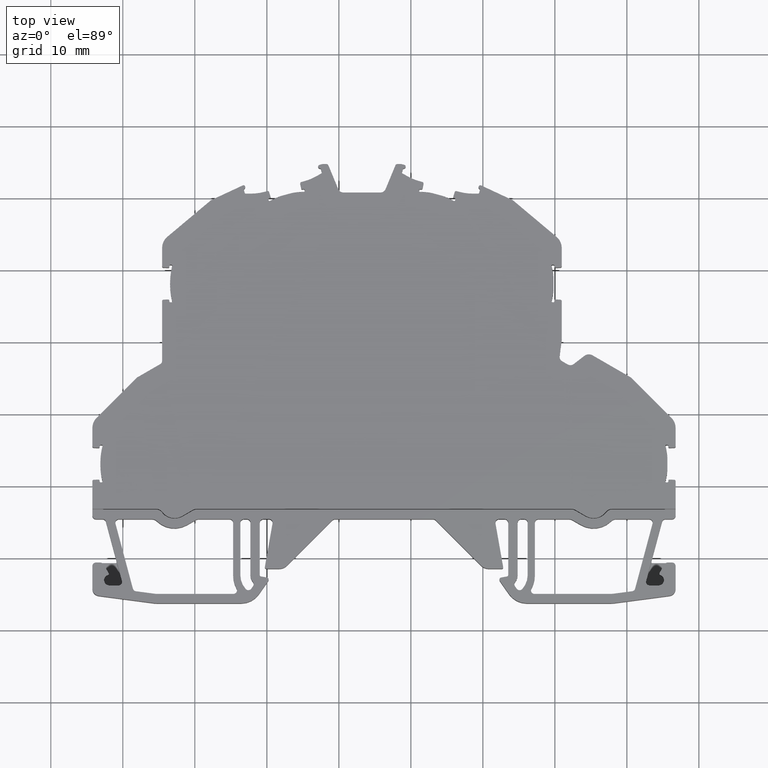
[diagram: clean part render]
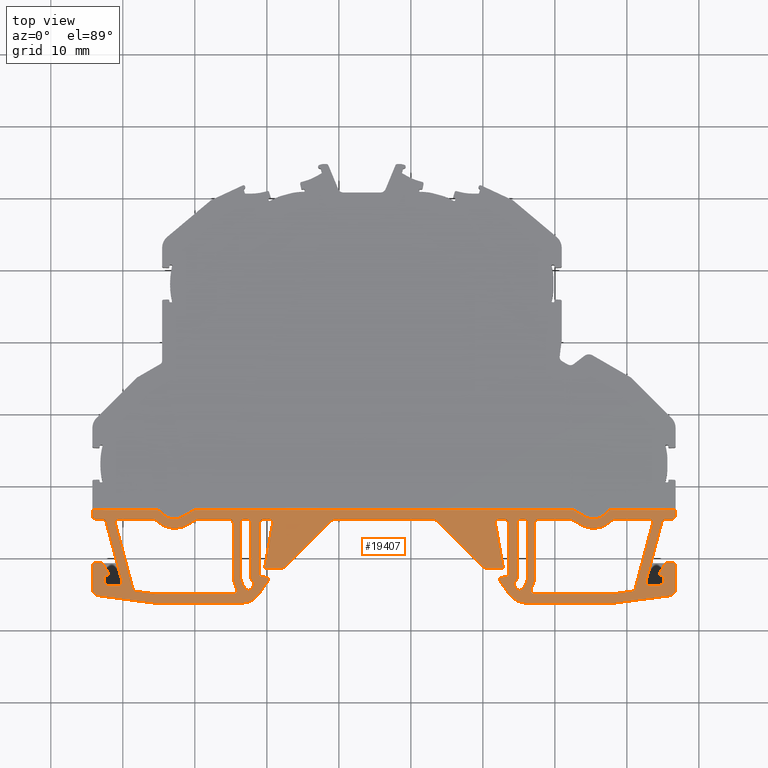
[diagram: same view with one face highlighted and labeled with its STEP entity id]
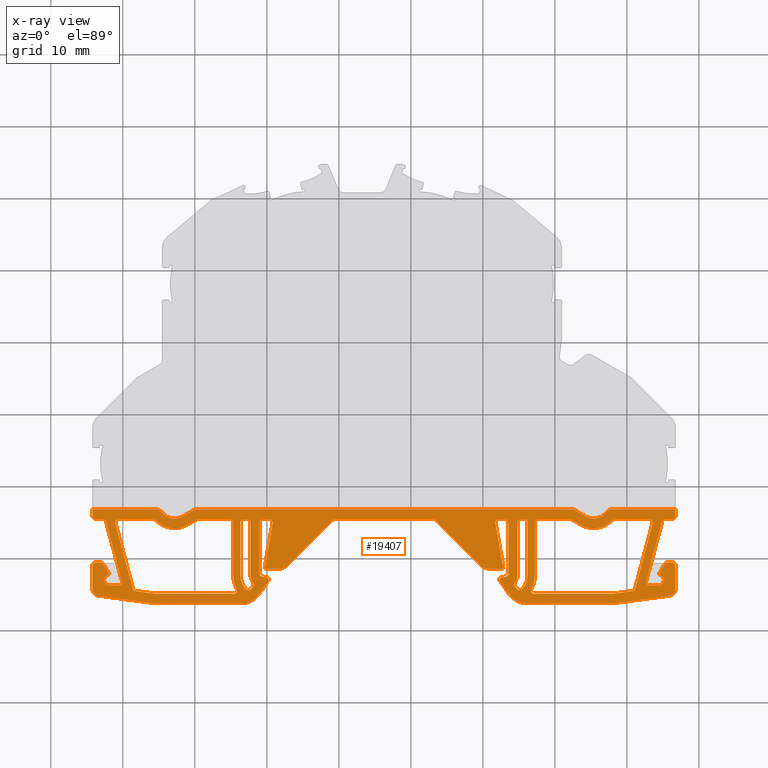
[diagram: x-ray of the same camera — body ghosted, the highlighted face saturated]
A machine part, top view. The second image highlights one B-rep face of the part: STEP entity #19407.
The next image is the same camera in x-ray: the body ghosted, the highlighted face saturated — about 0% of this face is hidden behind the body in this view.
In plain terms, the highlighted planar face has unit normal (0, 0, 1).
Its self-contained STEP definition (entity closure, byte-faithful):
#283 = VERTEX_POINT ( 'NONE', #12672 ) ;
#288 = VERTEX_POINT ( 'NONE', #12773 ) ;
#289 = VERTEX_POINT ( 'NONE', #12746 ) ;
#290 = VERTEX_POINT ( 'NONE', #12781 ) ;
#294 = VERTEX_POINT ( 'NONE', #12736 ) ;
#308 = VERTEX_POINT ( 'NONE', #12750 ) ;
#318 = VERTEX_POINT ( 'NONE', #12782 ) ;
#320 = VERTEX_POINT ( 'NONE', #12767 ) ;
#350 = VERTEX_POINT ( 'NONE', #12802 ) ;
#355 = VERTEX_POINT ( 'NONE', #12811 ) ;
#356 = VERTEX_POINT ( 'NONE', #12821 ) ;
#369 = VERTEX_POINT ( 'NONE', #12806 ) ;
#370 = VERTEX_POINT ( 'NONE', #12807 ) ;
#373 = VERTEX_POINT ( 'NONE', #12832 ) ;
#374 = VERTEX_POINT ( 'NONE', #12808 ) ;
#386 = VERTEX_POINT ( 'NONE', #12819 ) ;
#387 = VERTEX_POINT ( 'NONE', #12829 ) ;
#391 = VERTEX_POINT ( 'NONE', #12824 ) ;
#398 = VERTEX_POINT ( 'NONE', #12843 ) ;
#1526 = CIRCLE ( 'NONE', #1537, 3.900001552738396900 ) ;
#1528 = AXIS2_PLACEMENT_3D ( 'NONE', #16979, #16978, #16958 ) ;
#1532 = CIRCLE ( 'NONE', #1528, 2.999999999999891600 ) ;
#1535 = VECTOR ( 'NONE', #16971, 1000.000000000000000 ) ;
#1537 = AXIS2_PLACEMENT_3D ( 'NONE', #16921, #16923, #16924 ) ;
#1541 = CIRCLE ( 'NONE', #1552, 0.5000000000001669800 ) ;
#1547 = VECTOR ( 'NONE', #16948, 999.9999999999998900 ) ;
#1552 = AXIS2_PLACEMENT_3D ( 'NONE', #16950, #16967, #16984 ) ;
#1953 = VERTEX_POINT ( 'NONE', #12864 ) ;
#1960 = VERTEX_POINT ( 'NONE', #12851 ) ;
#1962 = VERTEX_POINT ( 'NONE', #12849 ) ;
#1965 = VERTEX_POINT ( 'NONE', #12856 ) ;
#1973 = VERTEX_POINT ( 'NONE', #12861 ) ;
#1979 = VERTEX_POINT ( 'NONE', #12869 ) ;
#1984 = VERTEX_POINT ( 'NONE', #12862 ) ;
#1991 = VERTEX_POINT ( 'NONE', #12871 ) ;
#1995 = VERTEX_POINT ( 'NONE', #12872 ) ;
#1997 = VERTEX_POINT ( 'NONE', #12866 ) ;
#2005 = VERTEX_POINT ( 'NONE', #11164 ) ;
#2009 = VERTEX_POINT ( 'NONE', #11140 ) ;
#2014 = VERTEX_POINT ( 'NONE', #11144 ) ;
#2016 = VERTEX_POINT ( 'NONE', #11133 ) ;
#2017 = VERTEX_POINT ( 'NONE', #11136 ) ;
#2023 = VERTEX_POINT ( 'NONE', #11159 ) ;
#2025 = VERTEX_POINT ( 'NONE', #11171 ) ;
#2042 = VERTEX_POINT ( 'NONE', #11141 ) ;
#2044 = VERTEX_POINT ( 'NONE', #11148 ) ;
#2048 = VERTEX_POINT ( 'NONE', #11134 ) ;
#2049 = VERTEX_POINT ( 'NONE', #11168 ) ;
#2076 = VERTEX_POINT ( 'NONE', #11142 ) ;
#2080 = VERTEX_POINT ( 'NONE', #11161 ) ;
#2082 = VERTEX_POINT ( 'NONE', #11158 ) ;
#2101 = VERTEX_POINT ( 'NONE', #11150 ) ;
#2107 = VERTEX_POINT ( 'NONE', #11166 ) ;
#2109 = VERTEX_POINT ( 'NONE', #11154 ) ;
#2116 = VERTEX_POINT ( 'NONE', #11160 ) ;
#2118 = VERTEX_POINT ( 'NONE', #11163 ) ;
#2122 = VERTEX_POINT ( 'NONE', #11199 ) ;
#2127 = VERTEX_POINT ( 'NONE', #11209 ) ;
#2133 = VERTEX_POINT ( 'NONE', #11201 ) ;
#2139 = VERTEX_POINT ( 'NONE', #11191 ) ;
#2141 = VERTEX_POINT ( 'NONE', #11208 ) ;
#2146 = VERTEX_POINT ( 'NONE', #11215 ) ;
#2151 = VERTEX_POINT ( 'NONE', #11221 ) ;
#2153 = VERTEX_POINT ( 'NONE', #11203 ) ;
#2155 = VERTEX_POINT ( 'NONE', #11204 ) ;
#2163 = VERTEX_POINT ( 'NONE', #11226 ) ;
#2174 = VERTEX_POINT ( 'NONE', #11187 ) ;
#2178 = VERTEX_POINT ( 'NONE', #11217 ) ;
#2187 = VERTEX_POINT ( 'NONE', #11219 ) ;
#2208 = VERTEX_POINT ( 'NONE', #11198 ) ;
#2214 = VERTEX_POINT ( 'NONE', #11189 ) ;
#2215 = VERTEX_POINT ( 'NONE', #11218 ) ;
#2221 = VERTEX_POINT ( 'NONE', #11220 ) ;
#2223 = VERTEX_POINT ( 'NONE', #11179 ) ;
#2224 = VERTEX_POINT ( 'NONE', #11225 ) ;
#2227 = VERTEX_POINT ( 'NONE', #11174 ) ;
#2231 = VERTEX_POINT ( 'NONE', #11192 ) ;
#2233 = VERTEX_POINT ( 'NONE', #11193 ) ;
#2238 = VERTEX_POINT ( 'NONE', #11176 ) ;
#2241 = VERTEX_POINT ( 'NONE', #11175 ) ;
#2244 = VERTEX_POINT ( 'NONE', #11177 ) ;
#2280 = VERTEX_POINT ( 'NONE', #11211 ) ;
#2285 = VERTEX_POINT ( 'NONE', #11182 ) ;
#2290 = VERTEX_POINT ( 'NONE', #11184 ) ;
#2309 = VERTEX_POINT ( 'NONE', #11301 ) ;
#2313 = VERTEX_POINT ( 'NONE', #11227 ) ;
#2320 = VERTEX_POINT ( 'NONE', #11310 ) ;
#2322 = VERTEX_POINT ( 'NONE', #11295 ) ;
#2332 = EDGE_LOOP ( 'NONE', ( #12145, #12154, #12157, #12129, #12149, #12116, #12109, #12155, #12104, #12190, #12151, #12130, #12189, #12139, #12178, #12193, #12119, #12113, #12112, #12125, #12144, #12133, #12117, #12120, #12127, #12118, #12211, #12209, #12102, #12219, #12188, #12142, #12123, #12105, #12111, #12177, #12176, #12140, #12138, #12101, #12146, #12122, #12124, #12114, #12153, #12132, #12136, #12150, #12107, #12121, #12156, #12106, #12152, #12147, #12148, #12134, #12108, #12126, #12128, #12098, #12099, #12183, #12161, #12175, #12182, #12181, #12201, #12192, #12272, #12179, #12208, #12206, #12180, #12218, #12165, #12187, #12195, #12197, #12170, #12196, #12186, #12247, #12185, #12169, #12163, #12213, #12191, #12162 ) ) ;
#2338 = VERTEX_POINT ( 'NONE', #11228 ) ;
#2346 = VERTEX_POINT ( 'NONE', #11257 ) ;
#2359 = VERTEX_POINT ( 'NONE', #11291 ) ;
#2387 = VERTEX_POINT ( 'NONE', #11259 ) ;
#2396 = VERTEX_POINT ( 'NONE', #11469 ) ;
#2473 = EDGE_LOOP ( 'NONE', ( #12216, #12160, #12174, #12171, #12214, #12217, #12194, #12168, #12164, #12202, #12159, #12205, #12167, #12212, #12203, #12172, #17910 ) ) ;
#2485 = EDGE_LOOP ( 'NONE', ( #12207, #12199, #12166, #12200, #12158, #12204, #12173, #12184, #12198, #12215, #12210 ) ) ;
#2502 = EDGE_LOOP ( 'NONE', ( #17902, #17792, #17926, #17858, #17790, #17808, #17841, #17900, #17804, #17845, #17755, #17754, #17860, #17925, #17743, #17930, #17854 ) ) ;
#2507 = EDGE_LOOP ( 'NONE', ( #17750, #17847, #17753, #17761, #17906, #17827, #17885, #17875, #17914, #17732, #17908 ) ) ;
#2801 = VERTEX_POINT ( 'NONE', #4033 ) ;
#2805 = VERTEX_POINT ( 'NONE', #4030 ) ;
#2810 = VERTEX_POINT ( 'NONE', #4023 ) ;
#2813 = VERTEX_POINT ( 'NONE', #4053 ) ;
#2814 = VERTEX_POINT ( 'NONE', #4054 ) ;
#2817 = VERTEX_POINT ( 'NONE', #4024 ) ;
#2819 = VERTEX_POINT ( 'NONE', #4027 ) ;
#2824 = VERTEX_POINT ( 'NONE', #4031 ) ;
#2826 = VERTEX_POINT ( 'NONE', #4034 ) ;
#2828 = VERTEX_POINT ( 'NONE', #4035 ) ;
#2832 = VERTEX_POINT ( 'NONE', #4091 ) ;
#2834 = VERTEX_POINT ( 'NONE', #4119 ) ;
#2836 = VERTEX_POINT ( 'NONE', #4111 ) ;
#2837 = VERTEX_POINT ( 'NONE', #4102 ) ;
#2838 = VERTEX_POINT ( 'NONE', #4088 ) ;
#2841 = VERTEX_POINT ( 'NONE', #4106 ) ;
#2843 = VERTEX_POINT ( 'NONE', #4136 ) ;
#2844 = VERTEX_POINT ( 'NONE', #4089 ) ;
#2846 = VERTEX_POINT ( 'NONE', #4107 ) ;
#2849 = VERTEX_POINT ( 'NONE', #4128 ) ;
#2856 = VERTEX_POINT ( 'NONE', #4097 ) ;
#3094 = EDGE_CURVE ( 'NONE', #2238, #2805, #4103, .T. ) ;
#3096 = EDGE_CURVE ( 'NONE', #2817, #2346, #15023, .T. ) ;
#3100 = EDGE_CURVE ( 'NONE', #2313, #2320, #15025, .T. ) ;
#3105 = EDGE_CURVE ( 'NONE', #2241, #2322, #3642, .T. ) ;
#3107 = EDGE_CURVE ( 'NONE', #2359, #2313, #15031, .T. ) ;
#3112 = EDGE_CURVE ( 'NONE', #2215, #2309, #3623, .T. ) ;
#3113 = EDGE_CURVE ( 'NONE', #2187, #2238, #14928, .T. ) ;
#3121 = EDGE_CURVE ( 'NONE', #2244, #2387, #14921, .T. ) ;
#3125 = EDGE_CURVE ( 'NONE', #2309, #2290, #14927, .T. ) ;
#3126 = EDGE_CURVE ( 'NONE', #2338, #2244, #3678, .T. ) ;
#3127 = EDGE_CURVE ( 'NONE', #2290, #2214, #3647, .T. ) ;
#3133 = EDGE_CURVE ( 'NONE', #2346, #2187, #3708, .T. ) ;
#3139 = EDGE_CURVE ( 'NONE', #2215, #17161, #14919, .T. ) ;
#3156 = EDGE_CURVE ( 'NONE', #17181, #2359, #3765, .T. ) ;
#3558 = EDGE_CURVE ( 'NONE', #2224, #2338, #1526, .T. ) ;
#3563 = EDGE_CURVE ( 'NONE', #2214, #2241, #1532, .T. ) ;
#3565 = EDGE_CURVE ( 'NONE', #2221, #2387, #16959, .T. ) ;
#3567 = EDGE_CURVE ( 'NONE', #2322, #2224, #1541, .T. ) ;
#3570 = EDGE_CURVE ( 'NONE', #2320, #2231, #16946, .T. ) ;
#3588 = EDGE_CURVE ( 'NONE', #2155, #2153, #17005, .T. ) ;
#3591 = EDGE_CURVE ( 'NONE', #2231, #2221, #15547, .T. ) ;
#3606 = CARTESIAN_POINT ( 'NONE',  ( 454.0286686228660100, -345.5949880069400100, -54.14999999999999900 ) ) ;
#3607 = DIRECTION ( 'NONE',  ( -0.0000000000000000000, -0.0000000000000000000, -1.000000000000000000 ) ) ;
#3612 = CARTESIAN_POINT ( 'NONE',  ( 457.1742763234730100, -342.3770457772095000, -54.14999999999999900 ) ) ;
#3613 = DIRECTION ( 'NONE',  ( 1.000000000000000000, 0.0000000000000000000, 0.0000000000000000000 ) ) ;
#3619 = DIRECTION ( 'NONE',  ( 0.0000000000000000000, 0.0000000000000000000, 1.000000000000000000 ) ) ;
#3623 = LINE ( 'NONE', #3624, #14894 ) ;
#3624 = CARTESIAN_POINT ( 'NONE',  ( 448.9753895833700300, -345.2243893752300300, -54.14999999999999900 ) ) ;
#3625 = DIRECTION ( 'NONE',  ( 0.2588027365803100600, -0.9659301959968652500, 0.0000000000000000000 ) ) ;
#3626 = CARTESIAN_POINT ( 'NONE',  ( 454.7990482216059700, -354.9950001424455200, -54.14999999999999900 ) ) ;
#3630 = DIRECTION ( 'NONE',  ( 1.000000000000000000, -5.254355787593750600E-015, 0.0000000000000000000 ) ) ;
#3631 = CARTESIAN_POINT ( 'NONE',  ( 525.7694162987299900, -354.2658068636930000, -54.14999999999999900 ) ) ;
#3633 = DIRECTION ( 'NONE',  ( -0.0000000000000000000, -0.0000000000000000000, -1.000000000000000000 ) ) ;
#3634 = DIRECTION ( 'NONE',  ( 1.000000000000000000, -5.551121601300383300E-014, 0.0000000000000000000 ) ) ;
#3636 = DIRECTION ( 'NONE',  ( 1.000000000000000000, 0.0000000000000000000, 0.0000000000000000000 ) ) ;
#3642 = LINE ( 'NONE', #3626, #15033 ) ;
#3647 = LINE ( 'NONE', #3653, #14933 ) ;
#3648 = DIRECTION ( 'NONE',  ( 1.026424864084920600E-007, 0.9999999999999947800, 0.0000000000000000000 ) ) ;
#3653 = CARTESIAN_POINT ( 'NONE',  ( 451.8144508149559900, -354.6279567928010000, -54.14999999999999900 ) ) ;
#3661 = CARTESIAN_POINT ( 'NONE',  ( 464.8198252384780200, -345.0949880069400100, -54.14999999999999900 ) ) ;
#3665 = DIRECTION ( 'NONE',  ( 0.0000000000000000000, 0.0000000000000000000, 1.000000000000000000 ) ) ;
#3676 = DIRECTION ( 'NONE',  ( 1.000000000000000000, 0.0000000000000000000, 0.0000000000000000000 ) ) ;
#3678 = LINE ( 'NONE', #3687, #14914 ) ;
#3681 = DIRECTION ( 'NONE',  ( 0.9914448352233119500, -0.1305263908526533800, 0.0000000000000000000 ) ) ;
#3683 = CARTESIAN_POINT ( 'NONE',  ( 451.8797140103819700, -354.1322343751890000, -54.14999999999999900 ) ) ;
#3684 = DIRECTION ( 'NONE',  ( 0.0000000000000000000, 0.0000000000000000000, 1.000000000000000000 ) ) ;
#3687 = CARTESIAN_POINT ( 'NONE',  ( 465.3198244911660000, -352.3757194544614900, -54.14999999999999900 ) ) ;
#3690 = DIRECTION ( 'NONE',  ( 1.000000000000000000, 0.0000000000000000000, 0.0000000000000000000 ) ) ;
#3698 = DIRECTION ( 'NONE',  ( 0.0000000000000000000, -1.000000000000000000, 0.0000000000000000000 ) ) ;
#3708 = LINE ( 'NONE', #3716, #14905 ) ;
#3712 = DIRECTION ( 'NONE',  ( -0.0000000000000000000, -0.0000000000000000000, -1.000000000000000000 ) ) ;
#3716 = CARTESIAN_POINT ( 'NONE',  ( 526.7694151317268700, -314.3331149838305700, -54.14999999999999900 ) ) ;
#3727 = CARTESIAN_POINT ( 'NONE',  ( 449.4583546813685200, -345.0949880069400100, -54.14999999999999900 ) ) ;
#3728 = DIRECTION ( 'NONE',  ( 1.000000000000000000, 0.0000000000000000000, 0.0000000000000000000 ) ) ;
#3740 = DIRECTION ( 'NONE',  ( 1.000000000000000000, -1.214602584019994100E-014, 0.0000000000000000000 ) ) ;
#3765 = LINE ( 'NONE', #3778, #14944 ) ;
#3778 = CARTESIAN_POINT ( 'NONE',  ( 510.7578147152257200, -344.5949880069406400, -54.14999999999999900 ) ) ;
#4023 = CARTESIAN_POINT ( 'NONE',  ( 469.1850793738280500, -352.5726785500260100, -54.14999999999999900 ) ) ;
#4024 = CARTESIAN_POINT ( 'NONE',  ( 526.2694151317269900, -350.6383374730544900, -54.14999999999999900 ) ) ;
#4027 = CARTESIAN_POINT ( 'NONE',  ( 503.5198254961879900, -345.0949927408910300, -54.14999999999999900 ) ) ;
#4030 = CARTESIAN_POINT ( 'NONE',  ( 524.0908524356827900, -355.4954221408569300, -54.14999999999999900 ) ) ;
#4031 = CARTESIAN_POINT ( 'NONE',  ( 447.1808241945805100, -344.5949880069400100, -54.14999999999999900 ) ) ;
#4033 = CARTESIAN_POINT ( 'NONE',  ( 502.2936728769719300, -353.0115476650664700, -54.14999999999999900 ) ) ;
#4034 = CARTESIAN_POINT ( 'NONE',  ( 447.6637915376144900, -344.9655950180935500, -54.14999999999999900 ) ) ;
#4035 = CARTESIAN_POINT ( 'NONE',  ( 448.5981664256632400, -355.5157415991079100, -54.14999999999999900 ) ) ;
#4053 = CARTESIAN_POINT ( 'NONE',  ( 446.8740376440479700, -350.6383337563180500, -54.14999999999999900 ) ) ;
#4054 = CARTESIAN_POINT ( 'NONE',  ( 469.0198254961879900, -345.0949927408910300, -54.14999999999999900 ) ) ;
#4087 = CARTESIAN_POINT ( 'NONE',  ( 526.2694146250869400, -351.1383379796940300, -54.14999999999999900 ) ) ;
#4088 = CARTESIAN_POINT ( 'NONE',  ( 503.0198254961879300, -344.5949917276120700, -54.14999999999999900 ) ) ;
#4089 = CARTESIAN_POINT ( 'NONE',  ( 503.3545716185479900, -352.5726785500260100, -54.14999999999999900 ) ) ;
#4091 = CARTESIAN_POINT ( 'NONE',  ( 446.2698141678904400, -344.5949880069400100, -54.14999999999999900 ) ) ;
#4097 = CARTESIAN_POINT ( 'NONE',  ( 472.7993868080169500, -351.0474766623120200, -54.14999999999999900 ) ) ;
#4098 = CARTESIAN_POINT ( 'NONE',  ( 516.3117740103106100, -356.5195588300104500, -54.14999999999999900 ) ) ;
#4099 = DIRECTION ( 'NONE',  ( -0.0000000000000000000, -0.0000000000000000000, -1.000000000000000000 ) ) ;
#4102 = CARTESIAN_POINT ( 'NONE',  ( 493.4342202620940200, -344.7414381843980200, -54.14999999999999900 ) ) ;
#4103 = LINE ( 'NONE', #4098, #15016 ) ;
#4106 = CARTESIAN_POINT ( 'NONE',  ( 449.8722888356995200, -353.2089479359364600, -54.14999999999999900 ) ) ;
#4107 = CARTESIAN_POINT ( 'NONE',  ( 499.7402641843579500, -351.0474766623120200, -54.14999999999999900 ) ) ;
#4108 = DIRECTION ( 'NONE',  ( -0.9914448352233056200, -0.1305263908527019600, 0.0000000000000000000 ) ) ;
#4111 = CARTESIAN_POINT ( 'NONE',  ( 502.6198273202420000, -351.4868160326694800, -54.14999999999999900 ) ) ;
#4117 = DIRECTION ( 'NONE',  ( 1.000000000000000000, 0.0000000000000000000, 0.0000000000000000000 ) ) ;
#4119 = CARTESIAN_POINT ( 'NONE',  ( 502.8167887110619200, -351.2520854909635100, -54.14999999999999900 ) ) ;
#4128 = CARTESIAN_POINT ( 'NONE',  ( 502.5415522238059200, -352.7161098295465000, -54.14999999999999900 ) ) ;
#4136 = CARTESIAN_POINT ( 'NONE',  ( 518.3018644742769500, -356.2582163078930100, -54.14999999999999900 ) ) ;
#4439 = CARTESIAN_POINT ( 'NONE',  ( 504.3693601478608500, -362.8581699133021600, -54.14999999999999900 ) ) ;
#4447 = CARTESIAN_POINT ( 'NONE',  ( 469.9198241074029700, -351.2868156674349500, -54.14999999999999900 ) ) ;
#4456 = DIRECTION ( 'NONE',  ( -0.9914448352233057300, 0.1305263908527011800, 0.0000000000000000000 ) ) ;
#4463 = DIRECTION ( 'NONE',  ( 1.000000000000000000, 2.497997243628036400E-012, 0.0000000000000000000 ) ) ;
#4468 = DIRECTION ( 'NONE',  ( -0.0000000000000000000, -0.0000000000000000000, -1.000000000000000000 ) ) ;
#4469 = LINE ( 'NONE', #4439, #9764 ) ;
#4481 = DIRECTION ( 'NONE',  ( 1.000000000000000000, 0.0000000000000000000, 0.0000000000000000000 ) ) ;
#4488 = DIRECTION ( 'NONE',  ( 0.0000000000000000000, 0.0000000000000000000, 1.000000000000000000 ) ) ;
#4494 = CARTESIAN_POINT ( 'NONE',  ( 510.7578147152256100, -356.2949997967389800, -54.14999999999999900 ) ) ;
#4496 = CARTESIAN_POINT ( 'NONE',  ( 469.2198260439039900, -352.3757194476580100, -54.14999999999999900 ) ) ;
#4503 = LINE ( 'NONE', #4516, #9780 ) ;
#4516 = CARTESIAN_POINT ( 'NONE',  ( 501.7924266435989000, -308.0551959397169000, -54.14999999999999900 ) ) ;
#4519 = DIRECTION ( 'NONE',  ( -0.5735940153013251400, -0.8191397350943873100, 0.0000000000000000000 ) ) ;
#4521 = LINE ( 'NONE', #4494, #9824 ) ;
#4531 = CARTESIAN_POINT ( 'NONE',  ( 524.0908524356827900, -314.3331149838305700, -54.14999999999999900 ) ) ;
#4532 = CARTESIAN_POINT ( 'NONE',  ( 477.2737453797059300, -308.4289615715983900, -54.14999999999999900 ) ) ;
#4534 = CARTESIAN_POINT ( 'NONE',  ( 469.0198254961879900, -314.3331149838305700, -54.14999999999999900 ) ) ;
#4535 = DIRECTION ( 'NONE',  ( 0.0000000000000000000, -1.000000000000000000, 0.0000000000000000000 ) ) ;
#4538 = DIRECTION ( 'NONE',  ( 0.1736484219629869700, 0.9848077099361908200, 0.0000000000000000000 ) ) ;
#4540 = DIRECTION ( 'NONE',  ( 0.0000000000000000000, -1.000000000000000000, 0.0000000000000000000 ) ) ;
#4548 = LINE ( 'NONE', #4534, #9857 ) ;
#4553 = LINE ( 'NONE', #4532, #9813 ) ;
#4561 = CARTESIAN_POINT ( 'NONE',  ( 470.3008117750179600, -345.0949921523815100, -54.14999999999999900 ) ) ;
#4567 = DIRECTION ( 'NONE',  ( 0.0000000000000000000, 0.0000000000000000000, 1.000000000000000000 ) ) ;
#4569 = LINE ( 'NONE', #4531, #9817 ) ;
#4571 = DIRECTION ( 'NONE',  ( -1.000000000000000000, 9.527929450349541400E-015, 0.0000000000000000000 ) ) ;
#4572 = DIRECTION ( 'NONE',  ( 1.000000000000000000, 0.0000000000000000000, 0.0000000000000000000 ) ) ;
#4575 = LINE ( 'NONE', #4587, #9832 ) ;
#4587 = CARTESIAN_POINT ( 'NONE',  ( 502.9604641189321200, -358.5312653704792200, -54.14999999999999900 ) ) ;
#4593 = DIRECTION ( 'NONE',  ( 0.0000000000000000000, 0.0000000000000000000, 1.000000000000000000 ) ) ;
#4594 = DIRECTION ( 'NONE',  ( -0.0000000000000000000, -0.0000000000000000000, -1.000000000000000000 ) ) ;
#4600 = DIRECTION ( 'NONE',  ( 1.000000000000000000, 0.0000000000000000000, 0.0000000000000000000 ) ) ;
#4601 = CARTESIAN_POINT ( 'NONE',  ( 466.4513492846080000, -353.2949997967385200, -54.14999999999999900 ) ) ;
#4607 = DIRECTION ( 'NONE',  ( 0.9847924157078911100, -0.1737351373908460100, 0.0000000000000000000 ) ) ;
#4611 = DIRECTION ( 'NONE',  ( 1.000000000000000000, 0.0000000000000000000, 0.0000000000000000000 ) ) ;
#4615 = CARTESIAN_POINT ( 'NONE',  ( 469.5198260028270200, -345.0949922342514900, -54.14999999999999900 ) ) ;
#4981 = DIRECTION ( 'NONE',  ( 1.000000000000000000, -6.454785545835760900E-014, 0.0000000000000000000 ) ) ;
#4985 = LINE ( 'NONE', #5020, #9789 ) ;
#5003 = CARTESIAN_POINT ( 'NONE',  ( 445.7702341286134800, -314.3331149838305700, -54.14999999999999900 ) ) ;
#5012 = CARTESIAN_POINT ( 'NONE',  ( 469.2198260439039900, -352.3757194476580100, -54.14999999999999900 ) ) ;
#5018 = CARTESIAN_POINT ( 'NONE',  ( 510.7578147152260600, -344.5949917276120700, -54.14999999999999900 ) ) ;
#5020 = CARTESIAN_POINT ( 'NONE',  ( 510.7578147152227600, -350.6383337563239600, -54.14999999999999900 ) ) ;
#5024 = LINE ( 'NONE', #5084, #9661 ) ;
#5032 = LINE ( 'NONE', #5018, #9755 ) ;
#5033 = DIRECTION ( 'NONE',  ( -0.0000000000000000000, -0.0000000000000000000, -1.000000000000000000 ) ) ;
#5043 = DIRECTION ( 'NONE',  ( -1.000000000000000000, 0.0000000000000000000, 0.0000000000000000000 ) ) ;
#5045 = DIRECTION ( 'NONE',  ( -0.0000000000000000000, -0.0000000000000000000, -1.000000000000000000 ) ) ;
#5053 = CARTESIAN_POINT ( 'NONE',  ( 454.7990482216059700, -351.9950001424455200, -54.14999999999999900 ) ) ;
#5058 = CARTESIAN_POINT ( 'NONE',  ( 448.5981664256632400, -314.3331149838305700, -54.14999999999999900 ) ) ;
#5059 = LINE ( 'NONE', #5062, #9676 ) ;
#5060 = LINE ( 'NONE', #5058, #9741 ) ;
#5061 = DIRECTION ( 'NONE',  ( 0.0000000000000000000, -1.000000000000000000, 0.0000000000000000000 ) ) ;
#5062 = CARTESIAN_POINT ( 'NONE',  ( 506.2198286436029100, -352.3757241696164900, -54.14999999999999900 ) ) ;
#5066 = DIRECTION ( 'NONE',  ( 1.000000000000000000, -9.193578674568230600E-014, 0.0000000000000000000 ) ) ;
#5070 = LINE ( 'NONE', #5003, #9735 ) ;
#5075 = DIRECTION ( 'NONE',  ( 0.0000000000000000000, 1.000000000000000000, 0.0000000000000000000 ) ) ;
#5077 = DIRECTION ( 'NONE',  ( 1.000000000000000000, 0.0000000000000000000, 0.0000000000000000000 ) ) ;
#5078 = LINE ( 'NONE', #5109, #9709 ) ;
#5080 = DIRECTION ( 'NONE',  ( 0.5735920096999779200, 0.8191411394920539200, 0.0000000000000000000 ) ) ;
#5084 = CARTESIAN_POINT ( 'NONE',  ( 468.0821661915489900, -353.9298327709404900, -54.14999999999999900 ) ) ;
#5085 = CARTESIAN_POINT ( 'NONE',  ( 469.9459747908659900, -353.0115471059894500, -54.14999999999999900 ) ) ;
#5090 = DIRECTION ( 'NONE',  ( -0.0000000000000000000, -0.0000000000000000000, -1.000000000000000000 ) ) ;
#5091 = DIRECTION ( 'NONE',  ( 1.000000000000000000, -3.828350462787567100E-014, 0.0000000000000000000 ) ) ;
#5095 = DIRECTION ( 'NONE',  ( 1.000000000000000000, 0.0000000000000000000, 0.0000000000000000000 ) ) ;
#5098 = DIRECTION ( 'NONE',  ( 1.000000000000000000, 0.0000000000000000000, 0.0000000000000000000 ) ) ;
#5101 = DIRECTION ( 'NONE',  ( 0.0000000000000000000, 1.000000000000000000, 0.0000000000000000000 ) ) ;
#5102 = DIRECTION ( 'NONE',  ( -0.0000000000000000000, -0.0000000000000000000, -1.000000000000000000 ) ) ;
#5103 = CARTESIAN_POINT ( 'NONE',  ( 504.4574848573990400, -353.9298328991549700, -54.14999999999999900 ) ) ;
#5105 = CARTESIAN_POINT ( 'NONE',  ( 505.7196042857530100, -345.0952235319484800, -54.14999999999999900 ) ) ;
#5106 = CARTESIAN_POINT ( 'NONE',  ( 503.3198249484709700, -352.3757194476580100, -54.14999999999999900 ) ) ;
#5107 = DIRECTION ( 'NONE',  ( 0.0000000000000000000, 0.0000000000000000000, 1.000000000000000000 ) ) ;
#5109 = CARTESIAN_POINT ( 'NONE',  ( 504.8198269066990100, -314.3331149838305700, -54.14999999999999900 ) ) ;
#5111 = CARTESIAN_POINT ( 'NONE',  ( 467.2198284954490100, -345.0949873178390100, -54.14999999999999900 ) ) ;
#5112 = CARTESIAN_POINT ( 'NONE',  ( 505.1038134061469700, -353.9811486486960300, -54.14999999999999900 ) ) ;
#5114 = DIRECTION ( 'NONE',  ( 0.0000000000000000000, 1.000000000000000000, 0.0000000000000000000 ) ) ;
#5116 = DIRECTION ( 'NONE',  ( 0.0000000000000000000, 0.0000000000000000000, 1.000000000000000000 ) ) ;
#5121 = DIRECTION ( 'NONE',  ( 0.0000000000000000000, 0.0000000000000000000, 1.000000000000000000 ) ) ;
#5122 = DIRECTION ( 'NONE',  ( 1.000000000000000000, 0.0000000000000000000, 0.0000000000000000000 ) ) ;
#5123 = DIRECTION ( 'NONE',  ( 0.5735920096998878800, -0.8191411394921168700, 0.0000000000000000000 ) ) ;
#5127 = CARTESIAN_POINT ( 'NONE',  ( 466.3198224120129700, -314.3331149838305700, -54.14999999999999900 ) ) ;
#5128 = DIRECTION ( 'NONE',  ( 1.000000000000000000, 0.0000000000000000000, 0.0000000000000000000 ) ) ;
#5130 = LINE ( 'NONE', #5127, #9693 ) ;
#5132 = DIRECTION ( 'NONE',  ( 0.0000000000000000000, 1.000000000000000000, 0.0000000000000000000 ) ) ;
#5135 = LINE ( 'NONE', #5103, #9678 ) ;
#5145 = CARTESIAN_POINT ( 'NONE',  ( 505.3198224969270900, -345.0949873178390100, -54.14999999999999900 ) ) ;
#5155 = DIRECTION ( 'NONE',  ( -0.0000000000000000000, -0.0000000000000000000, -1.000000000000000000 ) ) ;
#5172 = LINE ( 'NONE', #5222, #9681 ) ;
#5180 = DIRECTION ( 'NONE',  ( 1.000000000000000000, 0.0000000000000000000, 0.0000000000000000000 ) ) ;
#5183 = DIRECTION ( 'NONE',  ( -0.0000000000000000000, -0.0000000000000000000, -1.000000000000000000 ) ) ;
#5184 = DIRECTION ( 'NONE',  ( 1.000000000000000000, 0.0000000000000000000, 0.0000000000000000000 ) ) ;
#5186 = LINE ( 'NONE', #5215, #9702 ) ;
#5189 = CARTESIAN_POINT ( 'NONE',  ( 467.7198240856770300, -314.3331149838305700, -54.14999999999999900 ) ) ;
#5193 = DIRECTION ( 'NONE',  ( 1.000000000000000000, 0.0000000000000000000, 0.0000000000000000000 ) ) ;
#5194 = CARTESIAN_POINT ( 'NONE',  ( 466.8200467698629800, -345.0952235319190300, -54.14999999999999900 ) ) ;
#5195 = CARTESIAN_POINT ( 'NONE',  ( 469.2198260439039900, -352.3757194476580100, -54.14999999999999900 ) ) ;
#5200 = DIRECTION ( 'NONE',  ( 0.0000000000000000000, 0.0000000000000000000, 1.000000000000000000 ) ) ;
#5203 = LINE ( 'NONE', #5189, #9836 ) ;
#5204 = DIRECTION ( 'NONE',  ( 0.0000000000000000000, 0.0000000000000000000, 1.000000000000000000 ) ) ;
#5207 = DIRECTION ( 'NONE',  ( 0.9999999998265302100, 1.862630952425070300E-005, 0.0000000000000000000 ) ) ;
#5212 = DIRECTION ( 'NONE',  ( 1.000000000000000000, 0.0000000000000000000, 0.0000000000000000000 ) ) ;
#5215 = CARTESIAN_POINT ( 'NONE',  ( 510.7583783672039300, -344.5941807650176500, -54.14999999999999900 ) ) ;
#5218 = CARTESIAN_POINT ( 'NONE',  ( 467.4358376047830500, -353.9811485747740100, -54.14999999999999900 ) ) ;
#5221 = DIRECTION ( 'NONE',  ( 0.0000000000000000000, -1.000000000000000000, 0.0000000000000000000 ) ) ;
#5222 = CARTESIAN_POINT ( 'NONE',  ( 510.7572510462564400, -344.5950930067511400, -54.14999999999999900 ) ) ;
#5223 = DIRECTION ( 'NONE',  ( 0.9999999998265302100, -1.862630952425070300E-005, 0.0000000000000000000 ) ) ;
#5228 = CARTESIAN_POINT ( 'NONE',  ( 503.3198249484709700, -352.3757194476580100, -54.14999999999999900 ) ) ;
#5233 = DIRECTION ( 'NONE',  ( 1.000000000000000000, 1.110223872826058700E-013, 0.0000000000000000000 ) ) ;
#5236 = DIRECTION ( 'NONE',  ( 1.000000000000000000, 3.330671618477806500E-013, 0.0000000000000000000 ) ) ;
#5241 = CARTESIAN_POINT ( 'NONE',  ( 467.6725971927760400, -353.6430351885774700, -54.14999999999999900 ) ) ;
#5242 = DIRECTION ( 'NONE',  ( 1.000000000000000000, 0.0000000000000000000, 0.0000000000000000000 ) ) ;
#5246 = DIRECTION ( 'NONE',  ( -0.0000000000000000000, -0.0000000000000000000, -1.000000000000000000 ) ) ;
#5255 = DIRECTION ( 'NONE',  ( 0.0000000000000000000, 0.0000000000000000000, 1.000000000000000000 ) ) ;
#5259 = DIRECTION ( 'NONE',  ( -0.0000000000000000000, -0.0000000000000000000, -1.000000000000000000 ) ) ;
#5261 = CARTESIAN_POINT ( 'NONE',  ( 504.8670537816960300, -353.6430352104350200, -54.14999999999999900 ) ) ;
#5267 = DIRECTION ( 'NONE',  ( 0.9914448352233119500, 0.1305263908526533800, 0.0000000000000000000 ) ) ;
#5269 = DIRECTION ( 'NONE',  ( 1.000000000000000000, 0.0000000000000000000, 0.0000000000000000000 ) ) ;
#5274 = DIRECTION ( 'NONE',  ( 1.000000000000000000, 0.0000000000000000000, 0.0000000000000000000 ) ) ;
#5275 = LINE ( 'NONE', #5276, #14737 ) ;
#5276 = CARTESIAN_POINT ( 'NONE',  ( 510.7578147152260600, -344.5949917276125200, -54.14999999999999900 ) ) ;
#5277 = CARTESIAN_POINT ( 'NONE',  ( 515.3653746689010400, -342.3770494978825200, -54.14999999999999900 ) ) ;
#5280 = LINE ( 'NONE', #5281, #14731 ) ;
#5281 = CARTESIAN_POINT ( 'NONE',  ( 520.7251983853389000, -354.6279600534525100, -54.14999999999999900 ) ) ;
#5287 = CARTESIAN_POINT ( 'NONE',  ( 517.7406009786890300, -351.9950034030974800, -54.14999999999999900 ) ) ;
#5288 = DIRECTION ( 'NONE',  ( 1.000000000000000000, 0.0000000000000000000, 0.0000000000000000000 ) ) ;
#5290 = DIRECTION ( 'NONE',  ( 1.000000000000000000, 0.0000000000000000000, 0.0000000000000000000 ) ) ;
#5292 = DIRECTION ( 'NONE',  ( 0.0000000000000000000, 0.0000000000000000000, 1.000000000000000000 ) ) ;
#5297 = DIRECTION ( 'NONE',  ( 0.0000000000000000000, 0.0000000000000000000, 1.000000000000000000 ) ) ;
#5300 = CARTESIAN_POINT ( 'NONE',  ( 503.3198249484709700, -352.3757194476580100, -54.14999999999999900 ) ) ;
#5302 = CARTESIAN_POINT ( 'NONE',  ( 518.5109823695080400, -345.5949917276125200, -54.14999999999999900 ) ) ;
#5303 = DIRECTION ( 'NONE',  ( -0.0000000000000000000, -0.0000000000000000000, -1.000000000000000000 ) ) ;
#5304 = DIRECTION ( 'NONE',  ( 1.000000000000000000, 2.775557561562888800E-013, 0.0000000000000000000 ) ) ;
#5307 = DIRECTION ( 'NONE',  ( -0.0000000000000000000, -0.0000000000000000000, -1.000000000000000000 ) ) ;
#5317 = DIRECTION ( 'NONE',  ( 1.000000000000000000, 0.0000000000000000000, 0.0000000000000000000 ) ) ;
#5324 = DIRECTION ( 'NONE',  ( 1.000000000000000000, -2.220446049250311100E-013, 0.0000000000000000000 ) ) ;
#5331 = DIRECTION ( 'NONE',  ( 0.8660223589877615900, -0.5000052737054607700, 0.0000000000000000000 ) ) ;
#5338 = DIRECTION ( 'NONE',  ( -0.0000000000000000000, -0.0000000000000000000, -1.000000000000000000 ) ) ;
#5341 = CARTESIAN_POINT ( 'NONE',  ( 507.7198257538949500, -345.0949917276125200, -54.14999999999999900 ) ) ;
#5342 = DIRECTION ( 'NONE',  ( 0.0000000000000000000, 0.0000000000000000000, 1.000000000000000000 ) ) ;
#5349 = CARTESIAN_POINT ( 'NONE',  ( 511.9390306497139100, -345.5949917276125200, -54.14999999999999900 ) ) ;
#5352 = LINE ( 'NONE', #5354, #14747 ) ;
#5354 = CARTESIAN_POINT ( 'NONE',  ( 498.0162453023720600, -336.4018502160639100, -54.14999999999999900 ) ) ;
#5355 = DIRECTION ( 'NONE',  ( 0.0000000000000000000, 0.0000000000000000000, 1.000000000000000000 ) ) ;
#5367 = DIRECTION ( 'NONE',  ( 1.000000000000000000, 0.0000000000000000000, 0.0000000000000000000 ) ) ;
#5373 = CARTESIAN_POINT ( 'NONE',  ( 507.1758136907161000, -354.4950034030969700, -54.14999999999999900 ) ) ;
#5382 = LINE ( 'NONE', #5389, #14755 ) ;
#5384 = DIRECTION ( 'NONE',  ( -0.2588027365803158800, -0.9659301959968636900, 0.0000000000000000000 ) ) ;
#5385 = CARTESIAN_POINT ( 'NONE',  ( 524.6364375458269900, -352.2211769372320300, -54.14999999999999900 ) ) ;
#5389 = CARTESIAN_POINT ( 'NONE',  ( 530.4288663049727600, -319.6036014060766800, -54.14999999999999900 ) ) ;
#5396 = DIRECTION ( 'NONE',  ( -0.0000000000000000000, -0.0000000000000000000, -1.000000000000000000 ) ) ;
#5397 = DIRECTION ( 'NONE',  ( 1.000000000000000000, 3.700743415417596100E-013, 0.0000000000000000000 ) ) ;
#5401 = CARTESIAN_POINT ( 'NONE',  ( 507.2198265012079900, -352.3757231751340000, -54.14999999999999900 ) ) ;
#5402 = DIRECTION ( 'NONE',  ( 1.026424864084920600E-007, -0.9999999999999947800, 0.0000000000000000000 ) ) ;
#5404 = CARTESIAN_POINT ( 'NONE',  ( 520.6599351899129700, -354.1322376358410200, -54.14999999999999900 ) ) ;
#5406 = LINE ( 'NONE', #5401, #14777 ) ;
#5408 = LINE ( 'NONE', #5429, #14795 ) ;
#5416 = DIRECTION ( 'NONE',  ( -0.0000000000000000000, -0.0000000000000000000, -1.000000000000000000 ) ) ;
#5421 = DIRECTION ( 'NONE',  ( 0.0000000000000000000, 0.0000000000000000000, 1.000000000000000000 ) ) ;
#5422 = CARTESIAN_POINT ( 'NONE',  ( 523.0812943956740400, -345.0949917276090000, -54.14999999999999900 ) ) ;
#5428 = DIRECTION ( 'NONE',  ( 1.000000000000000000, 1.110223024625032300E-013, 0.0000000000000000000 ) ) ;
#5429 = CARTESIAN_POINT ( 'NONE',  ( 517.7406009786890300, -354.9950034030969700, -54.14999999999999900 ) ) ;
#5430 = DIRECTION ( 'NONE',  ( 1.000000000000000000, 0.0000000000000000000, 0.0000000000000000000 ) ) ;
#5439 = DIRECTION ( 'NONE',  ( 1.000000000000000000, 0.0000000000000000000, 0.0000000000000000000 ) ) ;
#7241 = DIRECTION ( 'NONE',  ( 0.0000000000000000000, 0.0000000000000000000, 1.000000000000000000 ) ) ;
#7242 = FACE_OUTER_BOUND ( 'NONE', #2332, .T. ) ;
#7244 = FACE_BOUND ( 'NONE', #2502, .T. ) ;
#7272 = PLANE ( 'NONE',  #14378 ) ;
#7276 = CARTESIAN_POINT ( 'NONE',  ( 510.7578147152260600, -314.3331149838305700, -54.14999999999999900 ) ) ;
#7279 = FACE_BOUND ( 'NONE', #2485, .T. ) ;
#7284 = FACE_BOUND ( 'NONE', #2507, .T. ) ;
#7285 = FACE_BOUND ( 'NONE', #2473, .T. ) ;
#7286 = DIRECTION ( 'NONE',  ( 1.000000000000000000, 0.0000000000000000000, 0.0000000000000000000 ) ) ;
#7584 = EDGE_CURVE ( 'NONE', #391, #320, #15577, .T. ) ;
#7601 = EDGE_CURVE ( 'NONE', #386, #1995, #15550, .T. ) ;
#7612 = EDGE_CURVE ( 'NONE', #374, #1960, #16602, .T. ) ;
#7628 = EDGE_CURVE ( 'NONE', #356, #318, #16677, .T. ) ;
#7631 = EDGE_CURVE ( 'NONE', #294, #386, #16672, .T. ) ;
#7633 = EDGE_CURVE ( 'NONE', #398, #356, #10046, .T. ) ;
#7636 = EDGE_CURVE ( 'NONE', #290, #17074, #10047, .T. ) ;
#7639 = EDGE_CURVE ( 'NONE', #373, #391, #16667, .T. ) ;
#7673 = EDGE_CURVE ( 'NONE', #17055, #294, #12876, .T. ) ;
#7681 = EDGE_CURVE ( 'NONE', #387, #288, #12881, .T. ) ;
#7687 = EDGE_CURVE ( 'NONE', #289, #374, #16752, .T. ) ;
#8184 = EDGE_CURVE ( 'NONE', #308, #290, #15675, .T. ) ;
#8193 = EDGE_CURVE ( 'NONE', #283, #370, #15685, .T. ) ;
#8201 = EDGE_CURVE ( 'NONE', #17105, #350, #19078, .T. ) ;
#8202 = EDGE_CURVE ( 'NONE', #17390, #308, #19090, .T. ) ;
#8212 = EDGE_CURVE ( 'NONE', #288, #289, #19190, .T. ) ;
#8214 = EDGE_CURVE ( 'NONE', #19927, #2841, #19140, .T. ) ;
#8216 = EDGE_CURVE ( 'NONE', #350, #19927, #15810, .T. ) ;
#8218 = EDGE_CURVE ( 'NONE', #369, #17080, #19152, .T. ) ;
#8219 = EDGE_CURVE ( 'NONE', #283, #1991, #15799, .T. ) ;
#8220 = EDGE_CURVE ( 'NONE', #320, #387, #15770, .T. ) ;
#8233 = EDGE_CURVE ( 'NONE', #370, #398, #19172, .T. ) ;
#8237 = EDGE_CURVE ( 'NONE', #318, #373, #19157, .T. ) ;
#8426 = DIRECTION ( 'NONE',  ( 1.000000000000000000, 5.551119364129677000E-013, 0.0000000000000000000 ) ) ;
#8459 = CARTESIAN_POINT ( 'NONE',  ( 504.8670537816960300, -353.6430352104350200, -54.14999999999999900 ) ) ;
#8464 = DIRECTION ( 'NONE',  ( -0.0000000000000000000, -0.0000000000000000000, -1.000000000000000000 ) ) ;
#8470 = DIRECTION ( 'NONE',  ( 1.000000000000000000, 0.0000000000000000000, 0.0000000000000000000 ) ) ;
#8475 = CARTESIAN_POINT ( 'NONE',  ( 469.9198241074029700, -351.2868156674349500, -54.14999999999999900 ) ) ;
#8481 = DIRECTION ( 'NONE',  ( -0.0000000000000000000, -0.0000000000000000000, -1.000000000000000000 ) ) ;
#8491 = DIRECTION ( 'NONE',  ( 0.0000000000000000000, 0.0000000000000000000, 1.000000000000000000 ) ) ;
#8495 = DIRECTION ( 'NONE',  ( 1.000000000000000000, 0.0000000000000000000, 0.0000000000000000000 ) ) ;
#8497 = CARTESIAN_POINT ( 'NONE',  ( 446.2702346352530200, -351.1383342629574700, -54.14999999999999900 ) ) ;
#8499 = DIRECTION ( 'NONE',  ( -0.0000000000000000000, -0.0000000000000000000, -1.000000000000000000 ) ) ;
#8500 = DIRECTION ( 'NONE',  ( 1.000000000000000000, 0.0000000000000000000, 0.0000000000000000000 ) ) ;
#8511 = CARTESIAN_POINT ( 'NONE',  ( 502.2388392173570000, -345.0949921523815100, -54.14999999999999900 ) ) ;
#8518 = CARTESIAN_POINT ( 'NONE',  ( 466.8200467698629800, -345.0952235319190300, -54.14999999999999900 ) ) ;
#8526 = DIRECTION ( 'NONE',  ( 1.000000000000000000, 0.0000000000000000000, 0.0000000000000000000 ) ) ;
#8528 = DIRECTION ( 'NONE',  ( -0.0000000000000000000, -0.0000000000000000000, -1.000000000000000000 ) ) ;
#8530 = DIRECTION ( 'NONE',  ( -0.0000000000000000000, -0.0000000000000000000, -1.000000000000000000 ) ) ;
#8534 = DIRECTION ( 'NONE',  ( -0.0000000000000000000, -0.0000000000000000000, -1.000000000000000000 ) ) ;
#8542 = DIRECTION ( 'NONE',  ( 1.000000000000000000, -5.551121601300383300E-014, 0.0000000000000000000 ) ) ;
#8550 = DIRECTION ( 'NONE',  ( 1.000000000000000000, -3.700741495889924900E-013, 0.0000000000000000000 ) ) ;
#8552 = CARTESIAN_POINT ( 'NONE',  ( 446.7702329616100200, -354.2658031469565000, -54.14999999999999900 ) ) ;
#8553 = CARTESIAN_POINT ( 'NONE',  ( 502.5936730325780700, -353.0115476650664700, -54.14999999999999900 ) ) ;
#8565 = CARTESIAN_POINT ( 'NONE',  ( 449.4583546813685200, -345.0949880069400100, -54.14999999999999900 ) ) ;
#8566 = DIRECTION ( 'NONE',  ( -0.9914448352233057300, 0.1305263908527011800, 0.0000000000000000000 ) ) ;
#8572 = DIRECTION ( 'NONE',  ( 0.0000000000000000000, 0.0000000000000000000, 1.000000000000000000 ) ) ;
#8575 = LINE ( 'NONE', #8578, #9983 ) ;
#8578 = CARTESIAN_POINT ( 'NONE',  ( 504.3694453335544400, -362.8575228647218300, -54.14999999999999900 ) ) ;
#8593 = CARTESIAN_POINT ( 'NONE',  ( 507.1758136907161000, -354.4950034030969700, -54.14999999999999900 ) ) ;
#8597 = DIRECTION ( 'NONE',  ( 1.000000000000000000, 0.0000000000000000000, 0.0000000000000000000 ) ) ;
#8614 = DIRECTION ( 'NONE',  ( 1.000000000000000000, 0.0000000000000000000, 0.0000000000000000000 ) ) ;
#8627 = DIRECTION ( 'NONE',  ( -0.0000000000000000000, -0.0000000000000000000, -1.000000000000000000 ) ) ;
#9427 = CIRCLE ( 'NONE', #9429, 0.4999987394841420900 ) ;
#9429 = AXIS2_PLACEMENT_3D ( 'NONE', #10615, #10643, #10603 ) ;
#9432 = AXIS2_PLACEMENT_3D ( 'NONE', #5241, #5259, #5233 ) ;
#9474 = CIRCLE ( 'NONE', #9432, 0.4999996180045651600 ) ;
#9478 = VECTOR ( 'NONE', #10730, 1000.000000000000000 ) ;
#9479 = AXIS2_PLACEMENT_3D ( 'NONE', #10709, #10721, #10731 ) ;
#9480 = VECTOR ( 'NONE', #10685, 999.9999999999998900 ) ;
#9483 = CIRCLE ( 'NONE', #9524, 1.499999999999945800 ) ;
#9492 = CIRCLE ( 'NONE', #9509, 0.2000003652349313700 ) ;
#9495 = CIRCLE ( 'NONE', #9479, 0.5000005066396751000 ) ;
#9502 = CIRCLE ( 'NONE', #9503, 0.2000005477171829000 ) ;
#9503 = AXIS2_PLACEMENT_3D ( 'NONE', #10738, #10770, #10740 ) ;
#9509 = AXIS2_PLACEMENT_3D ( 'NONE', #10679, #10667, #10671 ) ;
#9515 = VECTOR ( 'NONE', #10673, 1000.000000000000000 ) ;
#9520 = CIRCLE ( 'NONE', #9536, 0.5000000000000004400 ) ;
#9521 = VECTOR ( 'NONE', #10772, 1000.000000000000000 ) ;
#9524 = AXIS2_PLACEMENT_3D ( 'NONE', #10769, #10739, #10753 ) ;
#9529 = CIRCLE ( 'NONE', #9548, 0.4999996180046206700 ) ;
#9536 = AXIS2_PLACEMENT_3D ( 'NONE', #10700, #10704, #10687 ) ;
#9542 = CIRCLE ( 'NONE', #9600, 0.5000000000000559600 ) ;
#9544 = CIRCLE ( 'NONE', #9593, 3.000000000000002700 ) ;
#9548 = AXIS2_PLACEMENT_3D ( 'NONE', #5261, #5246, #5236 ) ;
#9551 = VECTOR ( 'NONE', #10788, 1000.000000000000100 ) ;
#9552 = CIRCLE ( 'NONE', #9569, 0.4999999999999449300 ) ;
#9555 = AXIS2_PLACEMENT_3D ( 'NONE', #10779, #10791, #10784 ) ;
#9556 = CIRCLE ( 'NONE', #9555, 1.500000000000001300 ) ;
#9563 = VECTOR ( 'NONE', #10881, 1000.000000000000000 ) ;
#9565 = VECTOR ( 'NONE', #10859, 1000.000000000000000 ) ;
#9569 = AXIS2_PLACEMENT_3D ( 'NONE', #10828, #10854, #10857 ) ;
#9570 = VECTOR ( 'NONE', #10908, 1000.000000000000000 ) ;
#9579 = VECTOR ( 'NONE', #10873, 1000.000000000000100 ) ;
#9580 = AXIS2_PLACEMENT_3D ( 'NONE', #10887, #10874, #10870 ) ;
#9581 = VECTOR ( 'NONE', #10860, 1000.000000000000000 ) ;
#9585 = CIRCLE ( 'NONE', #9599, 0.5000000000000004400 ) ;
#9586 = CIRCLE ( 'NONE', #9580, 4.300000114313418100 ) ;
#9587 = VECTOR ( 'NONE', #10909, 1000.000000000000100 ) ;
#9590 = AXIS2_PLACEMENT_3D ( 'NONE', #10782, #10810, #10803 ) ;
#9593 = AXIS2_PLACEMENT_3D ( 'NONE', #10931, #10937, #10949 ) ;
#9595 = VECTOR ( 'NONE', #10940, 1000.000000000000000 ) ;
#9597 = VECTOR ( 'NONE', #10927, 1000.000000000000000 ) ;
#9598 = VECTOR ( 'NONE', #10866, 1000.000000000000000 ) ;
#9599 = AXIS2_PLACEMENT_3D ( 'NONE', #10867, #10911, #10890 ) ;
#9600 = AXIS2_PLACEMENT_3D ( 'NONE', #10787, #10785, #10799 ) ;
#9602 = CIRCLE ( 'NONE', #9590, 0.5000004247697198400 ) ;
#9611 = VECTOR ( 'NONE', #11048, 1000.000000000000000 ) ;
#9615 = AXIS2_PLACEMENT_3D ( 'NONE', #11008, #11021, #11030 ) ;
#9618 = AXIS2_PLACEMENT_3D ( 'NONE', #10958, #10913, #10942 ) ;
#9625 = CIRCLE ( 'NONE', #9615, 0.4999999999999449300 ) ;
#9626 = CIRCLE ( 'NONE', #9618, 0.3000001556061615600 ) ;
#9635 = CIRCLE ( 'NONE', #9664, 0.5000000000000559600 ) ;
#9644 = AXIS2_PLACEMENT_3D ( 'NONE', #5012, #5033, #5091 ) ;
#9647 = VECTOR ( 'NONE', #10934, 1000.000000000000000 ) ;
#9650 = CIRCLE ( 'NONE', #9644, 2.900003631895187200 ) ;
#9661 = VECTOR ( 'NONE', #5080, 1000.000000000000000 ) ;
#9664 = AXIS2_PLACEMENT_3D ( 'NONE', #11013, #11014, #11035 ) ;
#9665 = VECTOR ( 'NONE', #11018, 1000.000000000000100 ) ;
#9667 = VECTOR ( 'NONE', #10941, 1000.000000000000000 ) ;
#9670 = CIRCLE ( 'NONE', #9675, 2.900003695136210700 ) ;
#9671 = CIRCLE ( 'NONE', #9730, 0.4999955902476593800 ) ;
#9673 = AXIS2_PLACEMENT_3D ( 'NONE', #5112, #5121, #5098 ) ;
#9674 = CIRCLE ( 'NONE', #9728, 1.500001958233299100 ) ;
#9675 = AXIS2_PLACEMENT_3D ( 'NONE', #5106, #5107, #5122 ) ;
#9676 = VECTOR ( 'NONE', #5132, 1000.000000000000000 ) ;
#9678 = VECTOR ( 'NONE', #5123, 1000.000000000000100 ) ;
#9680 = CIRCLE ( 'NONE', #9692, 0.5002244081621087800 ) ;
#9681 = VECTOR ( 'NONE', #5223, 1000.000000000000200 ) ;
#9688 = CIRCLE ( 'NONE', #9695, 0.5002244081621087800 ) ;
#9691 = CIRCLE ( 'NONE', #9673, 0.5000000000000559600 ) ;
#9692 = AXIS2_PLACEMENT_3D ( 'NONE', #5194, #5183, #5193 ) ;
#9693 = VECTOR ( 'NONE', #5101, 1000.000000000000000 ) ;
#9695 = AXIS2_PLACEMENT_3D ( 'NONE', #5105, #5116, #5128 ) ;
#9702 = VECTOR ( 'NONE', #5207, 1000.000000000000200 ) ;
#9709 = VECTOR ( 'NONE', #5114, 1000.000000000000000 ) ;
#9716 = CIRCLE ( 'NONE', #9749, 0.5000000000000004400 ) ;
#9719 = CIRCLE ( 'NONE', #9726, 0.4999955902477148900 ) ;
#9726 = AXIS2_PLACEMENT_3D ( 'NONE', #5145, #5155, #5180 ) ;
#9728 = AXIS2_PLACEMENT_3D ( 'NONE', #5195, #5204, #5184 ) ;
#9730 = AXIS2_PLACEMENT_3D ( 'NONE', #5111, #5102, #5095 ) ;
#9735 = VECTOR ( 'NONE', #5075, 1000.000000000000000 ) ;
#9738 = AXIS2_PLACEMENT_3D ( 'NONE', #5053, #5045, #4981 ) ;
#9741 = VECTOR ( 'NONE', #5061, 1000.000000000000000 ) ;
#9749 = AXIS2_PLACEMENT_3D ( 'NONE', #5218, #5200, #5212 ) ;
#9750 = CIRCLE ( 'NONE', #9758, 0.2000005477171829000 ) ;
#9755 = VECTOR ( 'NONE', #5043, 1000.000000000000000 ) ;
#9758 = AXIS2_PLACEMENT_3D ( 'NONE', #4496, #4488, #4481 ) ;
#9759 = AXIS2_PLACEMENT_3D ( 'NONE', #4447, #4468, #4463 ) ;
#9764 = VECTOR ( 'NONE', #4456, 1000.000000000000100 ) ;
#9776 = CIRCLE ( 'NONE', #9826, 1.500001958233299100 ) ;
#9780 = VECTOR ( 'NONE', #4519, 1000.000000000000100 ) ;
#9783 = CIRCLE ( 'NONE', #9785, 0.3000001556062725800 ) ;
#9784 = CIRCLE ( 'NONE', #9738, 4.299999654292951900 ) ;
#9785 = AXIS2_PLACEMENT_3D ( 'NONE', #5085, #5090, #5077 ) ;
#9789 = VECTOR ( 'NONE', #5066, 1000.000000000000000 ) ;
#9796 = CIRCLE ( 'NONE', #9759, 0.2000003652348758500 ) ;
#9799 = CIRCLE ( 'NONE', #9815, 0.5000004247697753500 ) ;
#9804 = CIRCLE ( 'NONE', #9853, 0.5000005066397861200 ) ;
#9813 = VECTOR ( 'NONE', #4538, 1000.000000000000000 ) ;
#9815 = AXIS2_PLACEMENT_3D ( 'NONE', #4561, #4567, #4572 ) ;
#9817 = VECTOR ( 'NONE', #4540, 1000.000000000000000 ) ;
#9824 = VECTOR ( 'NONE', #4571, 1000.000000000000000 ) ;
#9826 = AXIS2_PLACEMENT_3D ( 'NONE', #5228, #5255, #5242 ) ;
#9832 = VECTOR ( 'NONE', #4607, 1000.000000000000100 ) ;
#9836 = VECTOR ( 'NONE', #5221, 1000.000000000000000 ) ;
#9846 = AXIS2_PLACEMENT_3D ( 'NONE', #4601, #4594, #4611 ) ;
#9853 = AXIS2_PLACEMENT_3D ( 'NONE', #4615, #4593, #4600 ) ;
#9856 = CIRCLE ( 'NONE', #9846, 3.000000000000058200 ) ;
#9857 = VECTOR ( 'NONE', #4535, 1000.000000000000000 ) ;
#9867 = AXIS2_PLACEMENT_3D ( 'NONE', #8475, #8481, #8495 ) ;
#9869 = AXIS2_PLACEMENT_3D ( 'NONE', #8497, #8499, #8500 ) ;
#9876 = CIRCLE ( 'NONE', #9887, 0.5000004247697198400 ) ;
#9886 = CIRCLE ( 'NONE', #9909, 0.5002244081621087800 ) ;
#9887 = AXIS2_PLACEMENT_3D ( 'NONE', #8511, #8491, #8470 ) ;
#9889 = AXIS2_PLACEMENT_3D ( 'NONE', #8459, #8464, #8426 ) ;
#9890 = CIRCLE ( 'NONE', #9889, 0.4999996180046206700 ) ;
#9897 = CIRCLE ( 'NONE', #9869, 0.5000005066398416400 ) ;
#9898 = CIRCLE ( 'NONE', #9867, 0.2000003652348758500 ) ;
#9899 = AXIS2_PLACEMENT_3D ( 'NONE', #8552, #8530, #8542 ) ;
#9907 = AXIS2_PLACEMENT_3D ( 'NONE', #8553, #8534, #8550 ) ;
#9909 = AXIS2_PLACEMENT_3D ( 'NONE', #8518, #8528, #8526 ) ;
#9910 = CIRCLE ( 'NONE', #9907, 0.3000001556061615600 ) ;
#9913 = CIRCLE ( 'NONE', #9915, 0.5000000000001669800 ) ;
#9914 = CIRCLE ( 'NONE', #9899, 0.9999988329971731800 ) ;
#9915 = AXIS2_PLACEMENT_3D ( 'NONE', #8593, #8572, #8597 ) ;
#9976 = AXIS2_PLACEMENT_3D ( 'NONE', #8565, #8627, #8614 ) ;
#9982 = CIRCLE ( 'NONE', #9976, 0.5000000000000559600 ) ;
#9983 = VECTOR ( 'NONE', #8566, 1000.000000000000100 ) ;
#10042 = VECTOR ( 'NONE', #16618, 1000.000000000000000 ) ;
#10046 = CIRCLE ( 'NONE', #10053, 2.200000000000035300 ) ;
#10047 = CIRCLE ( 'NONE', #10051, 0.7500000000002504700 ) ;
#10049 = VECTOR ( 'NONE', #16654, 1000.000000000000000 ) ;
#10051 = AXIS2_PLACEMENT_3D ( 'NONE', #16682, #16674, #16684 ) ;
#10053 = AXIS2_PLACEMENT_3D ( 'NONE', #16683, #16659, #16641 ) ;
#10056 = VECTOR ( 'NONE', #16664, 1000.000000000000000 ) ;
#10075 = VECTOR ( 'NONE', #16675, 999.9999999999998900 ) ;
#10603 = DIRECTION ( 'NONE',  ( 1.000000000000000000, 0.0000000000000000000, 0.0000000000000000000 ) ) ;
#10609 = CARTESIAN_POINT ( 'NONE',  ( 447.3376452842993000, -350.9413390141049800, -54.14999999999999900 ) ) ;
#10615 = CARTESIAN_POINT ( 'NONE',  ( 446.8740369162144900, -351.1383324958015400, -54.14999999999999900 ) ) ;
#10627 = LINE ( 'NONE', #10609, #9480 ) ;
#10643 = DIRECTION ( 'NONE',  ( -0.0000000000000000000, -0.0000000000000000000, -1.000000000000000000 ) ) ;
#10652 = CARTESIAN_POINT ( 'NONE',  ( 496.7427162199709900, -316.8043585705755700, -54.14999999999999900 ) ) ;
#10662 = LINE ( 'NONE', #10672, #9515 ) ;
#10667 = DIRECTION ( 'NONE',  ( -0.0000000000000000000, -0.0000000000000000000, -1.000000000000000000 ) ) ;
#10671 = DIRECTION ( 'NONE',  ( 1.000000000000000000, 5.551104985838540000E-013, 0.0000000000000000000 ) ) ;
#10672 = CARTESIAN_POINT ( 'NONE',  ( 510.7578147152260600, -344.5949917276120700, -54.14999999999999900 ) ) ;
#10673 = DIRECTION ( 'NONE',  ( -1.000000000000000000, 0.0000000000000000000, 0.0000000000000000000 ) ) ;
#10674 = LINE ( 'NONE', #10652, #9478 ) ;
#10679 = CARTESIAN_POINT ( 'NONE',  ( 502.6198268849729500, -351.2868156674349500, -54.14999999999999900 ) ) ;
#10685 = DIRECTION ( 'NONE',  ( 0.4999239215942640800, -0.8660693232171500200, 0.0000000000000000000 ) ) ;
#10687 = DIRECTION ( 'NONE',  ( 1.000000000000000000, 0.0000000000000000000, 0.0000000000000000000 ) ) ;
#10700 = CARTESIAN_POINT ( 'NONE',  ( 479.4589839682539600, -345.0949917276120700, -54.14999999999999900 ) ) ;
#10704 = DIRECTION ( 'NONE',  ( 0.0000000000000000000, 0.0000000000000000000, 1.000000000000000000 ) ) ;
#10709 = CARTESIAN_POINT ( 'NONE',  ( 503.0198249895480000, -345.0949922342514900, -54.14999999999999900 ) ) ;
#10721 = DIRECTION ( 'NONE',  ( 0.0000000000000000000, 0.0000000000000000000, 1.000000000000000000 ) ) ;
#10730 = DIRECTION ( 'NONE',  ( 0.1736484219629869700, -0.9848077099361908200, 0.0000000000000000000 ) ) ;
#10731 = DIRECTION ( 'NONE',  ( 1.000000000000000000, 0.0000000000000000000, 0.0000000000000000000 ) ) ;
#10738 = CARTESIAN_POINT ( 'NONE',  ( 503.3198249484709700, -352.3757194476580100, -54.14999999999999900 ) ) ;
#10739 = DIRECTION ( 'NONE',  ( -0.0000000000000000000, -0.0000000000000000000, -1.000000000000000000 ) ) ;
#10740 = DIRECTION ( 'NONE',  ( 1.000000000000000000, 0.0000000000000000000, 0.0000000000000000000 ) ) ;
#10746 = CARTESIAN_POINT ( 'NONE',  ( 486.8918633665848600, -338.1990869372606300, -54.14999999999999900 ) ) ;
#10751 = LINE ( 'NONE', #10746, #9521 ) ;
#10753 = DIRECTION ( 'NONE',  ( 1.000000000000000000, 0.0000000000000000000, 0.0000000000000000000 ) ) ;
#10769 = CARTESIAN_POINT ( 'NONE',  ( 500.8009238982750200, -349.9868160326694800, -54.14999999999999900 ) ) ;
#10770 = DIRECTION ( 'NONE',  ( 0.0000000000000000000, 0.0000000000000000000, 1.000000000000000000 ) ) ;
#10772 = DIRECTION ( 'NONE',  ( -0.7071070864284441100, 0.7071064759445191400, 0.0000000000000000000 ) ) ;
#10778 = CARTESIAN_POINT ( 'NONE',  ( 510.7578147152260600, -351.4868160326694800, -54.14999999999999900 ) ) ;
#10779 = CARTESIAN_POINT ( 'NONE',  ( 471.7387270941010200, -349.9868160326694800, -54.14999999999999900 ) ) ;
#10782 = CARTESIAN_POINT ( 'NONE',  ( 502.2388392173570000, -345.0949921523815100, -54.14999999999999900 ) ) ;
#10784 = DIRECTION ( 'NONE',  ( 1.000000000000000000, 0.0000000000000000000, 0.0000000000000000000 ) ) ;
#10785 = DIRECTION ( 'NONE',  ( 0.0000000000000000000, 0.0000000000000000000, 1.000000000000000000 ) ) ;
#10787 = CARTESIAN_POINT ( 'NONE',  ( 493.0806670241209400, -345.0949917276120700, -54.14999999999999900 ) ) ;
#10788 = DIRECTION ( 'NONE',  ( -0.7071070864284472200, -0.7071064759445161400, 0.0000000000000000000 ) ) ;
#10791 = DIRECTION ( 'NONE',  ( -0.0000000000000000000, -0.0000000000000000000, -1.000000000000000000 ) ) ;
#10799 = DIRECTION ( 'NONE',  ( 1.000000000000000000, 0.0000000000000000000, 0.0000000000000000000 ) ) ;
#10803 = DIRECTION ( 'NONE',  ( 1.000000000000000000, 0.0000000000000000000, 0.0000000000000000000 ) ) ;
#10807 = LINE ( 'NONE', #10809, #9551 ) ;
#10809 = CARTESIAN_POINT ( 'NONE',  ( 510.1357979866484100, -313.7110977182316000, -54.14999999999999900 ) ) ;
#10810 = DIRECTION ( 'NONE',  ( 0.0000000000000000000, 0.0000000000000000000, 1.000000000000000000 ) ) ;
#10811 = LINE ( 'NONE', #10778, #9581 ) ;
#10828 = CARTESIAN_POINT ( 'NONE',  ( 526.2698350924490600, -344.0949917236760000, -54.14999999999999900 ) ) ;
#10834 = CARTESIAN_POINT ( 'NONE',  ( 510.7578147152260600, -344.5949917276120700, -54.14999999999999900 ) ) ;
#10838 = LINE ( 'NONE', #10845, #9598 ) ;
#10842 = LINE ( 'NONE', #10834, #9565 ) ;
#10845 = CARTESIAN_POINT ( 'NONE',  ( 510.7578147152260600, -351.4868160326694800, -54.14999999999999900 ) ) ;
#10854 = DIRECTION ( 'NONE',  ( -0.0000000000000000000, -0.0000000000000000000, -1.000000000000000000 ) ) ;
#10857 = DIRECTION ( 'NONE',  ( 1.000000000000000000, 0.0000000000000000000, 0.0000000000000000000 ) ) ;
#10859 = DIRECTION ( 'NONE',  ( -1.000000000000000000, 0.0000000000000000000, 0.0000000000000000000 ) ) ;
#10860 = DIRECTION ( 'NONE',  ( -1.000000000000000000, 0.0000000000000000000, 0.0000000000000000000 ) ) ;
#10866 = DIRECTION ( 'NONE',  ( -1.000000000000000000, 0.0000000000000000000, 0.0000000000000000000 ) ) ;
#10867 = CARTESIAN_POINT ( 'NONE',  ( 447.1808241945805100, -345.0949880069400100, -54.14999999999999900 ) ) ;
#10870 = DIRECTION ( 'NONE',  ( 1.000000000000000000, 1.290956971058623000E-014, 0.0000000000000000000 ) ) ;
#10873 = DIRECTION ( 'NONE',  ( 0.9847924157078796800, 0.1737351373909109500, 0.0000000000000000000 ) ) ;
#10874 = DIRECTION ( 'NONE',  ( -0.0000000000000000000, -0.0000000000000000000, -1.000000000000000000 ) ) ;
#10881 = DIRECTION ( 'NONE',  ( 0.0000000000000000000, 1.000000000000000000, 0.0000000000000000000 ) ) ;
#10884 = LINE ( 'NONE', #10895, #9563 ) ;
#10887 = CARTESIAN_POINT ( 'NONE',  ( 517.7406009786890300, -351.9950034030974800, -54.14999999999999900 ) ) ;
#10888 = LINE ( 'NONE', #10889, #9587 ) ;
#10889 = CARTESIAN_POINT ( 'NONE',  ( 531.5875825590821900, -319.9136701852601200, -54.14999999999999900 ) ) ;
#10890 = DIRECTION ( 'NONE',  ( 1.000000000000000000, 0.0000000000000000000, 0.0000000000000000000 ) ) ;
#10893 = LINE ( 'NONE', #10896, #9579 ) ;
#10895 = CARTESIAN_POINT ( 'NONE',  ( 503.5198254961879900, -314.3331149838305700, -54.14999999999999900 ) ) ;
#10896 = CARTESIAN_POINT ( 'NONE',  ( 517.0768793756497000, -350.1518160560894400, -54.14999999999999900 ) ) ;
#10897 = LINE ( 'NONE', #10906, #9570 ) ;
#10906 = CARTESIAN_POINT ( 'NONE',  ( 516.3118591960042100, -356.5202058785907900, -54.14999999999999900 ) ) ;
#10908 = DIRECTION ( 'NONE',  ( -0.9914448352233056200, -0.1305263908527019600, 0.0000000000000000000 ) ) ;
#10909 = DIRECTION ( 'NONE',  ( -0.2587859776924658600, -0.9659346860682426200, 0.0000000000000000000 ) ) ;
#10911 = DIRECTION ( 'NONE',  ( 0.0000000000000000000, 0.0000000000000000000, 1.000000000000000000 ) ) ;
#10913 = DIRECTION ( 'NONE',  ( -0.0000000000000000000, -0.0000000000000000000, -1.000000000000000000 ) ) ;
#10914 = LINE ( 'NONE', #10918, #9667 ) ;
#10916 = CARTESIAN_POINT ( 'NONE',  ( 510.7578147152279400, -344.5949880069360900, -54.14999999999999900 ) ) ;
#10918 = CARTESIAN_POINT ( 'NONE',  ( 510.7578147152260600, -356.2950035174105200, -54.14999999999999900 ) ) ;
#10921 = CARTESIAN_POINT ( 'NONE',  ( 486.8608132484835700, -331.0667398315990200, -54.14999999999999900 ) ) ;
#10926 = CARTESIAN_POINT ( 'NONE',  ( 510.7578147152260600, -344.5949917236760000, -54.14999999999999900 ) ) ;
#10927 = DIRECTION ( 'NONE',  ( -1.000000000000000000, -6.093363366478710200E-014, 0.0000000000000000000 ) ) ;
#10929 = LINE ( 'NONE', #10921, #9647 ) ;
#10931 = CARTESIAN_POINT ( 'NONE',  ( 506.0883007526831000, -353.2950035174105200, -54.14999999999999900 ) ) ;
#10934 = DIRECTION ( 'NONE',  ( -0.5735940153013088200, 0.8191397350943988600, 0.0000000000000000000 ) ) ;
#10937 = DIRECTION ( 'NONE',  ( -0.0000000000000000000, -0.0000000000000000000, -1.000000000000000000 ) ) ;
#10940 = DIRECTION ( 'NONE',  ( -1.000000000000000000, 0.0000000000000000000, 0.0000000000000000000 ) ) ;
#10941 = DIRECTION ( 'NONE',  ( -1.000000000000000000, 0.0000000000000000000, 0.0000000000000000000 ) ) ;
#10942 = DIRECTION ( 'NONE',  ( 1.000000000000000000, 1.850370747944962500E-013, 0.0000000000000000000 ) ) ;
#10949 = DIRECTION ( 'NONE',  ( 1.000000000000000000, 0.0000000000000000000, 0.0000000000000000000 ) ) ;
#10954 = LINE ( 'NONE', #10926, #9595 ) ;
#10956 = LINE ( 'NONE', #10916, #9597 ) ;
#10958 = CARTESIAN_POINT ( 'NONE',  ( 502.5936730325780700, -353.0115476650664700, -54.14999999999999900 ) ) ;
#11008 = CARTESIAN_POINT ( 'NONE',  ( 446.2698141678904400, -344.0949880069400100, -54.14999999999999900 ) ) ;
#11013 = CARTESIAN_POINT ( 'NONE',  ( 525.3588250657599000, -345.0949917236760000, -54.14999999999999900 ) ) ;
#11014 = DIRECTION ( 'NONE',  ( 0.0000000000000000000, 0.0000000000000000000, 1.000000000000000000 ) ) ;
#11018 = DIRECTION ( 'NONE',  ( -0.2587859776924658600, 0.9659346860682426200, 0.0000000000000000000 ) ) ;
#11021 = DIRECTION ( 'NONE',  ( -0.0000000000000000000, -0.0000000000000000000, -1.000000000000000000 ) ) ;
#11030 = DIRECTION ( 'NONE',  ( 1.000000000000000000, 0.0000000000000000000, 0.0000000000000000000 ) ) ;
#11032 = LINE ( 'NONE', #11036, #9665 ) ;
#11035 = DIRECTION ( 'NONE',  ( 1.000000000000000000, 0.0000000000000000000, 0.0000000000000000000 ) ) ;
#11036 = CARTESIAN_POINT ( 'NONE',  ( 444.2319979482092000, -332.1562129449550300, -54.14999999999999900 ) ) ;
#11046 = LINE ( 'NONE', #11047, #9611 ) ;
#11047 = CARTESIAN_POINT ( 'NONE',  ( 510.7578147152260600, -350.6383374730544900, -54.14999999999999900 ) ) ;
#11048 = DIRECTION ( 'NONE',  ( 1.000000000000000000, 0.0000000000000000000, 0.0000000000000000000 ) ) ;
#11133 = CARTESIAN_POINT ( 'NONE',  ( 503.5198254961879900, -352.3757199072054500, -54.14999999999999900 ) ) ;
#11134 = CARTESIAN_POINT ( 'NONE',  ( 467.2198235922299400, -344.5949917276150200, -54.14999999999999900 ) ) ;
#11136 = CARTESIAN_POINT ( 'NONE',  ( 503.6308815474000100, -355.0157855633144700, -54.14999999999999900 ) ) ;
#11140 = CARTESIAN_POINT ( 'NONE',  ( 526.2698350924490600, -344.5949917236760000, -54.14999999999999900 ) ) ;
#11141 = CARTESIAN_POINT ( 'NONE',  ( 504.4574848573990400, -353.9298328991549700, -54.14999999999999900 ) ) ;
#11142 = CARTESIAN_POINT ( 'NONE',  ( 523.0812963110049600, -344.5949917276125200, -54.14999999999999900 ) ) ;
#11144 = CARTESIAN_POINT ( 'NONE',  ( 500.8009238982750200, -351.4868160326694800, -54.14999999999999900 ) ) ;
#11148 = CARTESIAN_POINT ( 'NONE',  ( 505.4754774102119100, -354.3156122013934900, -54.14999999999999900 ) ) ;
#11150 = CARTESIAN_POINT ( 'NONE',  ( 467.7198240856770300, -345.0949917276930100, -54.14999999999999900 ) ) ;
#11154 = CARTESIAN_POINT ( 'NONE',  ( 512.4390359234189400, -344.7289693686250300, -54.14999999999999900 ) ) ;
#11158 = CARTESIAN_POINT ( 'NONE',  ( 518.5109823695080400, -344.5949917276125200, -54.14999999999999900 ) ) ;
#11159 = CARTESIAN_POINT ( 'NONE',  ( 505.3198274001460400, -344.5949917276150200, -54.14999999999999900 ) ) ;
#11160 = CARTESIAN_POINT ( 'NONE',  ( 467.8454076436939900, -354.2679453377034500, -54.14999999999999900 ) ) ;
#11161 = CARTESIAN_POINT ( 'NONE',  ( 517.8119584360390500, -344.8798934543394800, -54.14999999999999900 ) ) ;
#11163 = CARTESIAN_POINT ( 'NONE',  ( 504.6942434052540400, -354.2679454659174800, -54.14999999999999900 ) ) ;
#11164 = CARTESIAN_POINT ( 'NONE',  ( 525.3588250657599000, -344.5949917236760000, -54.14999999999999900 ) ) ;
#11166 = CARTESIAN_POINT ( 'NONE',  ( 467.7198240856770300, -352.3757235754420100, -54.14999999999999900 ) ) ;
#11168 = CARTESIAN_POINT ( 'NONE',  ( 513.6153562109310500, -345.4081277543389800, -54.14999999999999900 ) ) ;
#11171 = CARTESIAN_POINT ( 'NONE',  ( 504.8198269066990100, -352.3757235754420100, -54.14999999999999900 ) ) ;
#11174 = CARTESIAN_POINT ( 'NONE',  ( 507.2198265012079900, -352.3757231751340000, -54.14999999999999900 ) ) ;
#11175 = CARTESIAN_POINT ( 'NONE',  ( 454.7990482216059700, -354.9950001424455200, -54.14999999999999900 ) ) ;
#11176 = CARTESIAN_POINT ( 'NONE',  ( 525.8999435519369900, -355.2572504083115100, -54.14999999999999900 ) ) ;
#11177 = CARTESIAN_POINT ( 'NONE',  ( 465.3198252384780200, -345.0949880069400100, -54.14999999999999900 ) ) ;
#11179 = CARTESIAN_POINT ( 'NONE',  ( 467.0641736291730100, -354.3156121590899900, -54.14999999999999900 ) ) ;
#11182 = CARTESIAN_POINT ( 'NONE',  ( 504.8198269066990100, -345.0949917276930100, -54.14999999999999900 ) ) ;
#11184 = CARTESIAN_POINT ( 'NONE',  ( 451.8144508149559900, -354.6279567928010000, -54.14999999999999900 ) ) ;
#11187 = CARTESIAN_POINT ( 'NONE',  ( 506.2198286436029100, -345.0954478855885000, -54.14999999999999900 ) ) ;
#11189 = CARTESIAN_POINT ( 'NONE',  ( 454.4074690490480200, -354.9693346481155300, -54.14999999999999900 ) ) ;
#11191 = CARTESIAN_POINT ( 'NONE',  ( 518.1321801512471000, -354.9693379087669900, -54.14999999999999900 ) ) ;
#11192 = CARTESIAN_POINT ( 'NONE',  ( 460.1006150689549900, -344.7289656479520100, -54.14999999999999900 ) ) ;
#11193 = CARTESIAN_POINT ( 'NONE',  ( 466.3198224120129700, -352.3757241696179700, -54.14999999999999900 ) ) ;
#11198 = CARTESIAN_POINT ( 'NONE',  ( 507.1758136907161000, -354.9950034030969700, -54.14999999999999900 ) ) ;
#11199 = CARTESIAN_POINT ( 'NONE',  ( 517.7406009786890300, -354.9950034030969700, -54.14999999999999900 ) ) ;
#11201 = CARTESIAN_POINT ( 'NONE',  ( 505.7198378935170200, -344.5949991783345500, -54.14999999999999900 ) ) ;
#11203 = CARTESIAN_POINT ( 'NONE',  ( 507.7198257538949500, -344.5949917276125200, -54.14999999999999900 ) ) ;
#11204 = CARTESIAN_POINT ( 'NONE',  ( 511.9390306497139100, -344.5949917276125200, -54.14999999999999900 ) ) ;
#11208 = CARTESIAN_POINT ( 'NONE',  ( 520.7251983853389000, -354.6279600534525100, -54.14999999999999900 ) ) ;
#11209 = CARTESIAN_POINT ( 'NONE',  ( 468.0821661915489900, -353.9298327709404900, -54.14999999999999900 ) ) ;
#11211 = CARTESIAN_POINT ( 'NONE',  ( 506.2198286436029100, -352.3757241696164900, -54.14999999999999900 ) ) ;
#11215 = CARTESIAN_POINT ( 'NONE',  ( 523.5642596169259400, -345.2243926358814900, -54.14999999999999900 ) ) ;
#11217 = CARTESIAN_POINT ( 'NONE',  ( 468.0594046023890700, -353.3262077183775300, -54.14999999999999900 ) ) ;
#11218 = CARTESIAN_POINT ( 'NONE',  ( 448.9753895833700300, -345.2243893752300300, -54.14999999999999900 ) ) ;
#11219 = CARTESIAN_POINT ( 'NONE',  ( 526.7694151317268700, -354.2658058402584500, -54.14999999999999900 ) ) ;
#11220 = CARTESIAN_POINT ( 'NONE',  ( 460.6006203426600200, -344.5949880069400100, -54.14999999999999900 ) ) ;
#11221 = CARTESIAN_POINT ( 'NONE',  ( 466.3198224120129700, -345.0954478855899800, -54.14999999999999900 ) ) ;
#11225 = CARTESIAN_POINT ( 'NONE',  ( 465.8020160752020000, -354.2541728352089800, -54.14999999999999900 ) ) ;
#11226 = CARTESIAN_POINT ( 'NONE',  ( 521.1429002879119700, -354.2616390041309800, -54.14999999999999900 ) ) ;
#11227 = CARTESIAN_POINT ( 'NONE',  ( 454.7276925563339800, -344.8798897336665200, -54.14999999999999900 ) ) ;
#11228 = CARTESIAN_POINT ( 'NONE',  ( 465.3198244911660000, -352.3757194544614900, -54.14999999999999900 ) ) ;
#11257 = CARTESIAN_POINT ( 'NONE',  ( 526.7694151317268700, -351.1383384863334500, -54.14999999999999900 ) ) ;
#11259 = CARTESIAN_POINT ( 'NONE',  ( 464.8198252384780200, -344.5949880069400100, -54.14999999999999900 ) ) ;
#11273 = CARTESIAN_POINT ( 'NONE',  ( 522.6503277676750900, -353.3383446415195400, -54.14999999999999900 ) ) ;
#11291 = CARTESIAN_POINT ( 'NONE',  ( 454.0286686228660100, -344.5949880069400100, -54.14999999999999900 ) ) ;
#11295 = CARTESIAN_POINT ( 'NONE',  ( 465.3638355095790200, -354.9950001424455200, -54.14999999999999900 ) ) ;
#11301 = CARTESIAN_POINT ( 'NONE',  ( 451.3967489123840000, -354.2616357434795300, -54.14999999999999900 ) ) ;
#11310 = CARTESIAN_POINT ( 'NONE',  ( 458.9242947814430500, -345.4081240336665200, -54.14999999999999900 ) ) ;
#11441 = CARTESIAN_POINT ( 'NONE',  ( 523.1503277676749800, -353.3383446415195400, -54.14999999999999900 ) ) ;
#11450 = DIRECTION ( 'NONE',  ( 1.000000000000000000, 0.0000000000000000000, 0.0000000000000000000 ) ) ;
#11464 = DIRECTION ( 'NONE',  ( 0.0000000000000000000, 0.0000000000000000000, 1.000000000000000000 ) ) ;
#11469 = CARTESIAN_POINT ( 'NONE',  ( 507.2198257538949000, -345.0949917276125200, -54.14999999999999900 ) ) ;
#11493 = CARTESIAN_POINT ( 'NONE',  ( 448.1440854836164400, -353.0883409247824700, -54.14999999999999900 ) ) ;
#11503 = DIRECTION ( 'NONE',  ( 1.000000000000000000, 0.0000000000000000000, 0.0000000000000000000 ) ) ;
#11506 = DIRECTION ( 'NONE',  ( 0.0000000000000000000, 0.0000000000000000000, 1.000000000000000000 ) ) ;
#11571 = CARTESIAN_POINT ( 'NONE',  ( 522.6673604246410600, -353.2089516526730200, -54.14999999999999900 ) ) ;
#11606 = CARTESIAN_POINT ( 'NONE',  ( 524.5962919176429300, -352.3657048879464900, -54.14999999999999900 ) ) ;
#11623 = CARTESIAN_POINT ( 'NONE',  ( 447.9433573426969700, -352.3657011712099900, -54.14999999999999900 ) ) ;
#11626 = CARTESIAN_POINT ( 'NONE',  ( 524.4864375458270200, -352.2211769372320300, -54.14999999999999900 ) ) ;
#11632 = CARTESIAN_POINT ( 'NONE',  ( 506.7376331250930000, -354.2541760958609400, -54.14999999999999900 ) ) ;
#11644 = CARTESIAN_POINT ( 'NONE',  ( 466.8198130988579400, -344.5949991783345500, -54.14999999999999900 ) ) ;
#11673 = CARTESIAN_POINT ( 'NONE',  ( 445.7702341286134800, -351.1383347695970100, -54.14999999999999900 ) ) ;
#11680 = CARTESIAN_POINT ( 'NONE',  ( 447.3940854836161000, -353.0883409247824700, -54.14999999999999900 ) ) ;
#11701 = CARTESIAN_POINT ( 'NONE',  ( 469.5198254961879900, -344.5949917276120700, -54.14999999999999900 ) ) ;
#11708 = CARTESIAN_POINT ( 'NONE',  ( 469.7198237421681000, -351.2868156674349500, -54.14999999999999900 ) ) ;
#11712 = CARTESIAN_POINT ( 'NONE',  ( 448.5981664256632400, -355.5150833356008800, -54.14999999999999900 ) ) ;
#11715 = CARTESIAN_POINT ( 'NONE',  ( 501.7388387925872700, -345.0949921523815100, -54.14999999999999900 ) ) ;
#11716 = CARTESIAN_POINT ( 'NONE',  ( 470.3008112687979900, -344.5949917276120700, -54.14999999999999900 ) ) ;
#11717 = CARTESIAN_POINT ( 'NONE',  ( 445.7702341286134800, -354.2658021235220600, -54.14999999999999900 ) ) ;
#11721 = CARTESIAN_POINT ( 'NONE',  ( 502.3479311246780400, -353.1836261589739900, -54.14999999999999900 ) ) ;
#11726 = CARTESIAN_POINT ( 'NONE',  ( 469.0198254961879900, -352.3757199072054500, -54.14999999999999900 ) ) ;
#11728 = CARTESIAN_POINT ( 'NONE',  ( 448.9583546813684600, -345.0949880069400100, -54.14999999999999900 ) ) ;
#11729 = CARTESIAN_POINT ( 'NONE',  ( 506.6758136907159300, -354.4950034030969700, -54.14999999999999900 ) ) ;
#11730 = CARTESIAN_POINT ( 'NONE',  ( 504.4802463899860100, -353.3262077183775300, -54.14999999999999900 ) ) ;
#11733 = CARTESIAN_POINT ( 'NONE',  ( 454.7990482216059700, -356.2949997967385200, -54.14999999999999900 ) ) ;
#11735 = CARTESIAN_POINT ( 'NONE',  ( 524.0908524356827900, -355.4960804043639700, -54.14999999999999900 ) ) ;
#11736 = CARTESIAN_POINT ( 'NONE',  ( 466.3198223617008600, -345.0952235319190300, -54.14999999999999900 ) ) ;
#11739 = CARTESIAN_POINT ( 'NONE',  ( 470.1917189126139600, -353.1836224383020000, -54.14999999999999900 ) ) ;
#11742 = CARTESIAN_POINT ( 'NONE',  ( 449.4583546813685200, -344.5949880069400100, -54.14999999999999900 ) ) ;
#11744 = CARTESIAN_POINT ( 'NONE',  ( 454.2377847860639700, -356.2582125911565100, -54.14999999999999900 ) ) ;
#11747 = CARTESIAN_POINT ( 'NONE',  ( 446.6397057084034800, -355.2572466915750600, -54.14999999999999900 ) ) ;
#11751 = CARTESIAN_POINT ( 'NONE',  ( 469.9198236721330200, -351.4868160326694800, -54.14999999999999900 ) ) ;
#11752 = CARTESIAN_POINT ( 'NONE',  ( 504.3670541636914200, -353.6430352104350200, -54.14999999999999900 ) ) ;
#11753 = CARTESIAN_POINT ( 'NONE',  ( 466.4513492846080000, -356.2949997967385200, -54.14999999999999900 ) ) ;
#11776 = CARTESIAN_POINT ( 'NONE',  ( 470.7932161362069800, -345.1818159385935000, -54.14999999999999900 ) ) ;
#11777 = CARTESIAN_POINT ( 'NONE',  ( 469.9980987685689800, -352.7161098295465000, -54.14999999999999900 ) ) ;
#11779 = CARTESIAN_POINT ( 'NONE',  ( 446.2702341286134800, -350.6383337563180500, -54.14999999999999900 ) ) ;
#11780 = CARTESIAN_POINT ( 'NONE',  ( 469.7228622813140600, -351.2520854909635100, -54.14999999999999900 ) ) ;
#11784 = CARTESIAN_POINT ( 'NONE',  ( 468.9087684898920000, -355.0157818426424700, -54.14999999999999900 ) ) ;
#11803 = CARTESIAN_POINT ( 'NONE',  ( 471.7387270941000600, -351.4868160326694800, -54.14999999999999900 ) ) ;
#11817 = CARTESIAN_POINT ( 'NONE',  ( 502.2388397235779400, -344.5949917276120700, -54.14999999999999900 ) ) ;
#12098 = ORIENTED_EDGE ( 'NONE', *, *, #13848, .F. ) ;
#12099 = ORIENTED_EDGE ( 'NONE', *, *, #7612, .F. ) ;
#12101 = ORIENTED_EDGE ( 'NONE', *, *, #13890, .F. ) ;
#12102 = ORIENTED_EDGE ( 'NONE', *, *, #13819, .F. ) ;
#12104 = ORIENTED_EDGE ( 'NONE', *, *, #12630, .F. ) ;
#12105 = ORIENTED_EDGE ( 'NONE', *, *, #13803, .F. ) ;
#12106 = ORIENTED_EDGE ( 'NONE', *, *, #14067, .F. ) ;
#12107 = ORIENTED_EDGE ( 'NONE', *, *, #7601, .F. ) ;
#12108 = ORIENTED_EDGE ( 'NONE', *, *, #13862, .F. ) ;
#12109 = ORIENTED_EDGE ( 'NONE', *, *, #12610, .F. ) ;
#12111 = ORIENTED_EDGE ( 'NONE', *, *, #13854, .F. ) ;
#12112 = ORIENTED_EDGE ( 'NONE', *, *, #13824, .F. ) ;
#12113 = ORIENTED_EDGE ( 'NONE', *, *, #13839, .F. ) ;
#12114 = ORIENTED_EDGE ( 'NONE', *, *, #3094, .F. ) ;
#12116 = ORIENTED_EDGE ( 'NONE', *, *, #12631, .F. ) ;
#12117 = ORIENTED_EDGE ( 'NONE', *, *, #13816, .F. ) ;
#12118 = ORIENTED_EDGE ( 'NONE', *, *, #13843, .F. ) ;
#12119 = ORIENTED_EDGE ( 'NONE', *, *, #13526, .F. ) ;
#12120 = ORIENTED_EDGE ( 'NONE', *, *, #13792, .F. ) ;
#12121 = ORIENTED_EDGE ( 'NONE', *, *, #7631, .F. ) ;
#12122 = ORIENTED_EDGE ( 'NONE', *, *, #13856, .F. ) ;
#12123 = ORIENTED_EDGE ( 'NONE', *, *, #13855, .F. ) ;
#12124 = ORIENTED_EDGE ( 'NONE', *, *, #12621, .F. ) ;
#12125 = ORIENTED_EDGE ( 'NONE', *, *, #13817, .F. ) ;
#12126 = ORIENTED_EDGE ( 'NONE', *, *, #13918, .F. ) ;
#12127 = ORIENTED_EDGE ( 'NONE', *, *, #13795, .F. ) ;
#12128 = ORIENTED_EDGE ( 'NONE', *, *, #13876, .F. ) ;
#12129 = ORIENTED_EDGE ( 'NONE', *, *, #12576, .F. ) ;
#12130 = ORIENTED_EDGE ( 'NONE', *, *, #12627, .F. ) ;
#12132 = ORIENTED_EDGE ( 'NONE', *, *, #3133, .F. ) ;
#12133 = ORIENTED_EDGE ( 'NONE', *, *, #13838, .F. ) ;
#12134 = ORIENTED_EDGE ( 'NONE', *, *, #14156, .F. ) ;
#12136 = ORIENTED_EDGE ( 'NONE', *, *, #3096, .F. ) ;
#12138 = ORIENTED_EDGE ( 'NONE', *, *, #13869, .F. ) ;
#12139 = ORIENTED_EDGE ( 'NONE', *, *, #12625, .F. ) ;
#12140 = ORIENTED_EDGE ( 'NONE', *, *, #13884, .F. ) ;
#12142 = ORIENTED_EDGE ( 'NONE', *, *, #13766, .F. ) ;
#12144 = ORIENTED_EDGE ( 'NONE', *, *, #13773, .F. ) ;
#12145 = ORIENTED_EDGE ( 'NONE', *, *, #13549, .F. ) ;
#12146 = ORIENTED_EDGE ( 'NONE', *, *, #13859, .F. ) ;
#12147 = ORIENTED_EDGE ( 'NONE', *, *, #8184, .F. ) ;
#12148 = ORIENTED_EDGE ( 'NONE', *, *, #8202, .F. ) ;
#12149 = ORIENTED_EDGE ( 'NONE', *, *, #12615, .F. ) ;
#12150 = ORIENTED_EDGE ( 'NONE', *, *, #13907, .F. ) ;
#12151 = ORIENTED_EDGE ( 'NONE', *, *, #12622, .F. ) ;
#12152 = ORIENTED_EDGE ( 'NONE', *, *, #7636, .F. ) ;
#12153 = ORIENTED_EDGE ( 'NONE', *, *, #3113, .F. ) ;
#12154 = ORIENTED_EDGE ( 'NONE', *, *, #12569, .T. ) ;
#12155 = ORIENTED_EDGE ( 'NONE', *, *, #12580, .F. ) ;
#12156 = ORIENTED_EDGE ( 'NONE', *, *, #7673, .F. ) ;
#12157 = ORIENTED_EDGE ( 'NONE', *, *, #12594, .F. ) ;
#12158 = ORIENTED_EDGE ( 'NONE', *, *, #13927, .T. ) ;
#12159 = ORIENTED_EDGE ( 'NONE', *, *, #3139, .T. ) ;
#12160 = ORIENTED_EDGE ( 'NONE', *, *, #3121, .F. ) ;
#12161 = ORIENTED_EDGE ( 'NONE', *, *, #8212, .F. ) ;
#12162 = ORIENTED_EDGE ( 'NONE', *, *, #13532, .F. ) ;
#12163 = ORIENTED_EDGE ( 'NONE', *, *, #12572, .F. ) ;
#12164 = ORIENTED_EDGE ( 'NONE', *, *, #3125, .F. ) ;
#12165 = ORIENTED_EDGE ( 'NONE', *, *, #13878, .F. ) ;
#12166 = ORIENTED_EDGE ( 'NONE', *, *, #13924, .F. ) ;
#12167 = ORIENTED_EDGE ( 'NONE', *, *, #3156, .T. ) ;
#12168 = ORIENTED_EDGE ( 'NONE', *, *, #3127, .F. ) ;
#12169 = ORIENTED_EDGE ( 'NONE', *, *, #13724, .F. ) ;
#12170 = ORIENTED_EDGE ( 'NONE', *, *, #8216, .F. ) ;
#12171 = ORIENTED_EDGE ( 'NONE', *, *, #3558, .F. ) ;
#12172 = ORIENTED_EDGE ( 'NONE', *, *, #3570, .T. ) ;
#12173 = ORIENTED_EDGE ( 'NONE', *, *, #13994, .T. ) ;
#12174 = ORIENTED_EDGE ( 'NONE', *, *, #3126, .F. ) ;
#12175 = ORIENTED_EDGE ( 'NONE', *, *, #7681, .F. ) ;
#12176 = ORIENTED_EDGE ( 'NONE', *, *, #13539, .F. ) ;
#12177 = ORIENTED_EDGE ( 'NONE', *, *, #13882, .F. ) ;
#12178 = ORIENTED_EDGE ( 'NONE', *, *, #12620, .F. ) ;
#12179 = ORIENTED_EDGE ( 'NONE', *, *, #7633, .F. ) ;
#12180 = ORIENTED_EDGE ( 'NONE', *, *, #8219, .T. ) ;
#12181 = ORIENTED_EDGE ( 'NONE', *, *, #7584, .F. ) ;
#12182 = ORIENTED_EDGE ( 'NONE', *, *, #8220, .F. ) ;
#12183 = ORIENTED_EDGE ( 'NONE', *, *, #7687, .F. ) ;
#12184 = ORIENTED_EDGE ( 'NONE', *, *, #13534, .T. ) ;
#12185 = ORIENTED_EDGE ( 'NONE', *, *, #13737, .F. ) ;
#12186 = ORIENTED_EDGE ( 'NONE', *, *, #14176, .F. ) ;
#12187 = ORIENTED_EDGE ( 'NONE', *, *, #13849, .F. ) ;
#12188 = ORIENTED_EDGE ( 'NONE', *, *, #13764, .F. ) ;
#12189 = ORIENTED_EDGE ( 'NONE', *, *, #12574, .F. ) ;
#12190 = ORIENTED_EDGE ( 'NONE', *, *, #12598, .F. ) ;
#12191 = ORIENTED_EDGE ( 'NONE', *, *, #12579, .F. ) ;
#12192 = ORIENTED_EDGE ( 'NONE', *, *, #8237, .F. ) ;
#12193 = ORIENTED_EDGE ( 'NONE', *, *, #12588, .F. ) ;
#12194 = ORIENTED_EDGE ( 'NONE', *, *, #3563, .F. ) ;
#12195 = ORIENTED_EDGE ( 'NONE', *, *, #13920, .F. ) ;
#12196 = ORIENTED_EDGE ( 'NONE', *, *, #8201, .F. ) ;
#12197 = ORIENTED_EDGE ( 'NONE', *, *, #8214, .F. ) ;
#12198 = ORIENTED_EDGE ( 'NONE', *, *, #13995, .T. ) ;
#12199 = ORIENTED_EDGE ( 'NONE', *, *, #14014, .T. ) ;
#12200 = ORIENTED_EDGE ( 'NONE', *, *, #14006, .F. ) ;
#12201 = ORIENTED_EDGE ( 'NONE', *, *, #7639, .F. ) ;
#12202 = ORIENTED_EDGE ( 'NONE', *, *, #3112, .F. ) ;
#12203 = ORIENTED_EDGE ( 'NONE', *, *, #3100, .T. ) ;
#12204 = ORIENTED_EDGE ( 'NONE', *, *, #13967, .T. ) ;
#12205 = ORIENTED_EDGE ( 'NONE', *, *, #13560, .T. ) ;
#12206 = ORIENTED_EDGE ( 'NONE', *, *, #8193, .F. ) ;
#12207 = ORIENTED_EDGE ( 'NONE', *, *, #13992, .T. ) ;
#12208 = ORIENTED_EDGE ( 'NONE', *, *, #8233, .F. ) ;
#12209 = ORIENTED_EDGE ( 'NONE', *, *, #13767, .F. ) ;
#12210 = ORIENTED_EDGE ( 'NONE', *, *, #14008, .T. ) ;
#12211 = ORIENTED_EDGE ( 'NONE', *, *, #13762, .F. ) ;
#12212 = ORIENTED_EDGE ( 'NONE', *, *, #3107, .T. ) ;
#12213 = ORIENTED_EDGE ( 'NONE', *, *, #13529, .F. ) ;
#12214 = ORIENTED_EDGE ( 'NONE', *, *, #3567, .F. ) ;
#12215 = ORIENTED_EDGE ( 'NONE', *, *, #13946, .T. ) ;
#12216 = ORIENTED_EDGE ( 'NONE', *, *, #3565, .T. ) ;
#12217 = ORIENTED_EDGE ( 'NONE', *, *, #3105, .F. ) ;
#12218 = ORIENTED_EDGE ( 'NONE', *, *, #13916, .F. ) ;
#12219 = ORIENTED_EDGE ( 'NONE', *, *, #13520, .F. ) ;
#12247 = ORIENTED_EDGE ( 'NONE', *, *, #8218, .F. ) ;
#12272 = ORIENTED_EDGE ( 'NONE', *, *, #7628, .F. ) ;
#12569 = EDGE_CURVE ( 'NONE', #17198, #2828, #5060, .T. ) ;
#12572 = EDGE_CURVE ( 'NONE', #17220, #2813, #4985, .T. ) ;
#12574 = EDGE_CURVE ( 'NONE', #17204, #17201, #5032, .T. ) ;
#12576 = EDGE_CURVE ( 'NONE', #17200, #17199, #9784, .T. ) ;
#12579 = EDGE_CURVE ( 'NONE', #17163, #17113, #5070, .T. ) ;
#12580 = EDGE_CURVE ( 'NONE', #17226, #17210, #9783, .T. ) ;
#12588 = EDGE_CURVE ( 'NONE', #17202, #17227, #9796, .T. ) ;
#12594 = EDGE_CURVE ( 'NONE', #17199, #2828, #4469, .T. ) ;
#12598 = EDGE_CURVE ( 'NONE', #17162, #2810, #9750, .T. ) ;
#12610 = EDGE_CURVE ( 'NONE', #17210, #17224, #4503, .T. ) ;
#12615 = EDGE_CURVE ( 'NONE', #17195, #17200, #4521, .T. ) ;
#12620 = EDGE_CURVE ( 'NONE', #17227, #17225, #4553, .T. ) ;
#12621 = EDGE_CURVE ( 'NONE', #2805, #17205, #4569, .T. ) ;
#12622 = EDGE_CURVE ( 'NONE', #2814, #17162, #4548, .T. ) ;
#12625 = EDGE_CURVE ( 'NONE', #17225, #17204, #9799, .T. ) ;
#12627 = EDGE_CURVE ( 'NONE', #17201, #2814, #9804, .T. ) ;
#12630 = EDGE_CURVE ( 'NONE', #2810, #17226, #4575, .T. ) ;
#12631 = EDGE_CURVE ( 'NONE', #17224, #17195, #9856, .T. ) ;
#12672 = CARTESIAN_POINT ( 'NONE',  ( 445.7698141678904400, -343.2949880069400000, -54.14999999999999900 ) ) ;
#12736 = CARTESIAN_POINT ( 'NONE',  ( 524.5065271473449700, -352.1461883489930100, -54.14999999999999900 ) ) ;
#12746 = CARTESIAN_POINT ( 'NONE',  ( 517.9269147949739800, -343.2949880069395500, -54.14999999999999900 ) ) ;
#12750 = CARTESIAN_POINT ( 'NONE',  ( 523.1503277676749800, -353.8383446415195400, -54.14999999999999900 ) ) ;
#12767 = CARTESIAN_POINT ( 'NONE',  ( 512.7873722058190000, -343.4289656479525100, -54.14999999999999900 ) ) ;
#12773 = CARTESIAN_POINT ( 'NONE',  ( 517.1264329086490100, -343.6956310601490300, -54.14999999999999900 ) ) ;
#12781 = CARTESIAN_POINT ( 'NONE',  ( 524.3955637767239800, -353.8383446415195400, -54.14999999999999900 ) ) ;
#12782 = CARTESIAN_POINT ( 'NONE',  ( 459.7522872496019800, -343.4289656479525100, -54.14999999999999900 ) ) ;
#12802 = CARTESIAN_POINT ( 'NONE',  ( 448.1440854836164400, -353.8383409247829300, -54.14999999999999900 ) ) ;
#12806 = CARTESIAN_POINT ( 'NONE',  ( 448.0331221129954400, -352.1461846322565100, -54.14999999999999900 ) ) ;
#12807 = CARTESIAN_POINT ( 'NONE',  ( 454.6127446604469900, -343.2949880069400000, -54.14999999999999900 ) ) ;
#12808 = CARTESIAN_POINT ( 'NONE',  ( 526.7698350924490600, -343.2949880069400000, -54.14999999999999900 ) ) ;
#12811 = CARTESIAN_POINT ( 'NONE',  ( 447.3070708499894900, -350.8883717955209800, -54.14999999999999900 ) ) ;
#12819 = CARTESIAN_POINT ( 'NONE',  ( 525.2325784103509200, -350.8883755122574800, -54.14999999999999900 ) ) ;
#12821 = CARTESIAN_POINT ( 'NONE',  ( 458.2742982988390300, -344.2822949669824800, -54.14999999999999900 ) ) ;
#12824 = CARTESIAN_POINT ( 'NONE',  ( 512.2873669321140800, -343.2949880069400000, -54.14999999999999900 ) ) ;
#12829 = CARTESIAN_POINT ( 'NONE',  ( 514.2653611565829100, -344.2822949669824800, -54.14999999999999900 ) ) ;
#12832 = CARTESIAN_POINT ( 'NONE',  ( 460.2522925233080300, -343.2949880069400000, -54.14999999999999900 ) ) ;
#12843 = CARTESIAN_POINT ( 'NONE',  ( 455.4132265467720200, -343.6956310601490300, -54.14999999999999900 ) ) ;
#12849 = CARTESIAN_POINT ( 'NONE',  ( 493.0806670241209400, -344.5949917276120700, -54.14999999999999900 ) ) ;
#12851 = CARTESIAN_POINT ( 'NONE',  ( 526.7698350924490600, -344.0949917236760000, -54.14999999999999900 ) ) ;
#12856 = CARTESIAN_POINT ( 'NONE',  ( 524.8758577227259800, -344.9655987348299400, -54.14999999999999900 ) ) ;
#12861 = CARTESIAN_POINT ( 'NONE',  ( 506.0883007526831000, -356.2950035174105200, -54.14999999999999900 ) ) ;
#12862 = CARTESIAN_POINT ( 'NONE',  ( 501.7464348561679800, -345.1818159385935000, -54.14999999999999900 ) ) ;
#12864 = CARTESIAN_POINT ( 'NONE',  ( 479.1054307302820200, -344.7414381843975100, -54.14999999999999900 ) ) ;
#12866 = CARTESIAN_POINT ( 'NONE',  ( 517.7406018156849500, -356.2950035174105200, -54.14999999999999900 ) ) ;
#12869 = CARTESIAN_POINT ( 'NONE',  ( 479.4589839682539600, -344.5949917276120700, -54.14999999999999900 ) ) ;
#12871 = CARTESIAN_POINT ( 'NONE',  ( 445.7698141678904400, -344.0949880069400100, -54.14999999999999900 ) ) ;
#12872 = CARTESIAN_POINT ( 'NONE',  ( 525.6656116162920400, -350.6383374730544900, -54.14999999999999900 ) ) ;
#12876 = CIRCLE ( 'NONE', #12877, 0.1499999999999834800 ) ;
#12877 = AXIS2_PLACEMENT_3D ( 'NONE', #16755, #16753, #16773 ) ;
#12881 = CIRCLE ( 'NONE', #12886, 2.200000000000090800 ) ;
#12886 = AXIS2_PLACEMENT_3D ( 'NONE', #16768, #16745, #16758 ) ;
#12895 = VECTOR ( 'NONE', #16766, 1000.000000000000000 ) ;
#13514 = EDGE_CURVE ( 'NONE', #17159, #17178, #9890, .T. ) ;
#13520 = EDGE_CURVE ( 'NONE', #17219, #17203, #9876, .T. ) ;
#13526 = EDGE_CURVE ( 'NONE', #17213, #17202, #9898, .T. ) ;
#13529 = EDGE_CURVE ( 'NONE', #17113, #17220, #9897, .T. ) ;
#13532 = EDGE_CURVE ( 'NONE', #17212, #17163, #9914, .T. ) ;
#13534 = EDGE_CURVE ( 'NONE', #17184, #17126, #9886, .T. ) ;
#13539 = EDGE_CURVE ( 'NONE', #17152, #2801, #9910, .T. ) ;
#13546 = EDGE_CURVE ( 'NONE', #17135, #17174, #9913, .T. ) ;
#13549 = EDGE_CURVE ( 'NONE', #17198, #17212, #8575, .T. ) ;
#13560 = EDGE_CURVE ( 'NONE', #17161, #17181, #9982, .T. ) ;
#13724 = EDGE_CURVE ( 'NONE', #2813, #355, #9427, .T. ) ;
#13737 = EDGE_CURVE ( 'NONE', #355, #369, #10627, .T. ) ;
#13762 = EDGE_CURVE ( 'NONE', #2834, #2836, #9492, .T. ) ;
#13764 = EDGE_CURVE ( 'NONE', #2838, #17219, #10662, .T. ) ;
#13766 = EDGE_CURVE ( 'NONE', #2819, #2838, #9495, .T. ) ;
#13767 = EDGE_CURVE ( 'NONE', #1984, #2834, #10674, .T. ) ;
#13773 = EDGE_CURVE ( 'NONE', #1979, #1953, #9520, .T. ) ;
#13792 = EDGE_CURVE ( 'NONE', #2846, #2837, #10751, .T. ) ;
#13795 = EDGE_CURVE ( 'NONE', #2014, #2846, #9483, .T. ) ;
#13803 = EDGE_CURVE ( 'NONE', #2844, #2016, #9502, .T. ) ;
#13816 = EDGE_CURVE ( 'NONE', #2837, #1962, #9542, .T. ) ;
#13817 = EDGE_CURVE ( 'NONE', #1953, #2856, #10807, .T. ) ;
#13819 = EDGE_CURVE ( 'NONE', #17203, #1984, #9602, .T. ) ;
#13824 = EDGE_CURVE ( 'NONE', #2856, #17228, #9556, .T. ) ;
#13838 = EDGE_CURVE ( 'NONE', #1962, #1979, #10842, .T. ) ;
#13839 = EDGE_CURVE ( 'NONE', #17228, #17213, #10838, .T. ) ;
#13843 = EDGE_CURVE ( 'NONE', #2836, #2014, #10811, .T. ) ;
#13848 = EDGE_CURVE ( 'NONE', #1960, #2009, #9552, .T. ) ;
#13849 = EDGE_CURVE ( 'NONE', #2826, #2824, #9585, .T. ) ;
#13854 = EDGE_CURVE ( 'NONE', #2849, #2844, #10893, .T. ) ;
#13855 = EDGE_CURVE ( 'NONE', #2016, #2819, #10884, .T. ) ;
#13856 = EDGE_CURVE ( 'NONE', #17205, #2843, #10897, .T. ) ;
#13859 = EDGE_CURVE ( 'NONE', #2843, #1997, #9586, .T. ) ;
#13862 = EDGE_CURVE ( 'NONE', #1965, #17063, #10888, .T. ) ;
#13869 = EDGE_CURVE ( 'NONE', #1973, #2017, #9544, .T. ) ;
#13876 = EDGE_CURVE ( 'NONE', #2009, #2005, #10954, .T. ) ;
#13878 = EDGE_CURVE ( 'NONE', #2824, #2832, #10956, .T. ) ;
#13882 = EDGE_CURVE ( 'NONE', #2801, #2849, #9626, .T. ) ;
#13884 = EDGE_CURVE ( 'NONE', #2017, #17152, #10929, .T. ) ;
#13890 = EDGE_CURVE ( 'NONE', #1997, #1973, #10914, .T. ) ;
#13907 = EDGE_CURVE ( 'NONE', #1995, #2817, #11046, .T. ) ;
#13916 = EDGE_CURVE ( 'NONE', #2832, #1991, #9625, .T. ) ;
#13918 = EDGE_CURVE ( 'NONE', #2005, #1965, #9635, .T. ) ;
#13920 = EDGE_CURVE ( 'NONE', #2841, #2826, #11032, .T. ) ;
#13924 = EDGE_CURVE ( 'NONE', #2116, #2127, #5024, .T. ) ;
#13927 = EDGE_CURVE ( 'NONE', #2223, #2233, #9650, .T. ) ;
#13944 = EDGE_CURVE ( 'NONE', #2025, #2285, #5078, .T. ) ;
#13946 = EDGE_CURVE ( 'NONE', #2048, #2101, #9671, .T. ) ;
#13947 = EDGE_CURVE ( 'NONE', #2280, #2174, #5059, .T. ) ;
#13954 = EDGE_CURVE ( 'NONE', #2118, #2044, #9691, .T. ) ;
#13957 = EDGE_CURVE ( 'NONE', #2042, #2118, #5135, .T. ) ;
#13961 = EDGE_CURVE ( 'NONE', #2174, #2133, #9688, .T. ) ;
#13965 = EDGE_CURVE ( 'NONE', #2044, #2280, #9670, .T. ) ;
#13967 = EDGE_CURVE ( 'NONE', #2233, #2151, #5130, .T. ) ;
#13972 = EDGE_CURVE ( 'NONE', #2285, #2023, #9719, .T. ) ;
#13990 = EDGE_CURVE ( 'NONE', #2023, #2133, #5172, .T. ) ;
#13992 = EDGE_CURVE ( 'NONE', #2107, #2178, #9674, .T. ) ;
#13994 = EDGE_CURVE ( 'NONE', #2151, #17184, #9680, .T. ) ;
#13995 = EDGE_CURVE ( 'NONE', #17126, #2048, #5186, .T. ) ;
#14006 = EDGE_CURVE ( 'NONE', #2223, #2116, #9716, .T. ) ;
#14008 = EDGE_CURVE ( 'NONE', #2101, #2107, #5203, .T. ) ;
#14014 = EDGE_CURVE ( 'NONE', #2178, #2127, #9474, .T. ) ;
#14016 = EDGE_CURVE ( 'NONE', #2042, #17159, #9529, .T. ) ;
#14018 = EDGE_CURVE ( 'NONE', #17178, #2025, #9776, .T. ) ;
#14026 = EDGE_CURVE ( 'NONE', #2049, #2080, #14710, .T. ) ;
#14027 = EDGE_CURVE ( 'NONE', #2139, #2141, #5280, .T. ) ;
#14029 = EDGE_CURVE ( 'NONE', #2122, #2139, #14767, .T. ) ;
#14031 = EDGE_CURVE ( 'NONE', #2082, #2076, #5275, .T. ) ;
#14037 = EDGE_CURVE ( 'NONE', #2227, #17135, #14762, .T. ) ;
#14042 = EDGE_CURVE ( 'NONE', #2080, #2082, #14745, .T. ) ;
#14052 = EDGE_CURVE ( 'NONE', #2155, #2109, #14757, .T. ) ;
#14056 = EDGE_CURVE ( 'NONE', #2109, #2049, #5352, .T. ) ;
#14058 = EDGE_CURVE ( 'NONE', #2153, #2396, #14725, .T. ) ;
#14067 = EDGE_CURVE ( 'NONE', #17074, #17055, #14714, .T. ) ;
#14069 = EDGE_CURVE ( 'NONE', #17174, #2208, #14742, .T. ) ;
#14073 = EDGE_CURVE ( 'NONE', #2146, #2163, #5382, .T. ) ;
#14081 = EDGE_CURVE ( 'NONE', #2141, #2163, #14759, .T. ) ;
#14088 = EDGE_CURVE ( 'NONE', #2076, #2146, #14820, .T. ) ;
#14090 = EDGE_CURVE ( 'NONE', #2208, #2122, #5408, .T. ) ;
#14093 = EDGE_CURVE ( 'NONE', #2396, #2227, #5406, .T. ) ;
#14156 = EDGE_CURVE ( 'NONE', #17063, #17390, #14843, .T. ) ;
#14176 = EDGE_CURVE ( 'NONE', #17080, #17105, #14318, .T. ) ;
#14278 = AXIS2_PLACEMENT_3D ( 'NONE', #11493, #11506, #11503 ) ;
#14318 = CIRCLE ( 'NONE', #14278, 0.7500000000003614900 ) ;
#14378 = AXIS2_PLACEMENT_3D ( 'NONE', #7276, #7241, #7286 ) ;
#14710 = CIRCLE ( 'NONE', #14732, 3.499999999999947600 ) ;
#14713 = AXIS2_PLACEMENT_3D ( 'NONE', #5302, #5303, #5304 ) ;
#14714 = CIRCLE ( 'NONE', #14721, 0.1499999999999834800 ) ;
#14719 = AXIS2_PLACEMENT_3D ( 'NONE', #5287, #5297, #5274 ) ;
#14721 = AXIS2_PLACEMENT_3D ( 'NONE', #5385, #5396, #5397 ) ;
#14725 = CIRCLE ( 'NONE', #14751, 0.4999999999999449300 ) ;
#14731 = VECTOR ( 'NONE', #5267, 1000.000000000000100 ) ;
#14732 = AXIS2_PLACEMENT_3D ( 'NONE', #5277, #5292, #5290 ) ;
#14734 = AXIS2_PLACEMENT_3D ( 'NONE', #5349, #5338, #5324 ) ;
#14737 = VECTOR ( 'NONE', #5269, 1000.000000000000000 ) ;
#14742 = CIRCLE ( 'NONE', #14743, 0.5000000000001669800 ) ;
#14743 = AXIS2_PLACEMENT_3D ( 'NONE', #5373, #5355, #5367 ) ;
#14745 = CIRCLE ( 'NONE', #14713, 1.000000000000000900 ) ;
#14747 = VECTOR ( 'NONE', #5331, 999.9999999999997700 ) ;
#14751 = AXIS2_PLACEMENT_3D ( 'NONE', #5341, #5342, #5317 ) ;
#14755 = VECTOR ( 'NONE', #5384, 1000.000000000000100 ) ;
#14757 = CIRCLE ( 'NONE', #14734, 1.000000000000000900 ) ;
#14759 = CIRCLE ( 'NONE', #14786, 0.5000000000000559600 ) ;
#14762 = CIRCLE ( 'NONE', #14764, 3.900001552738396900 ) ;
#14764 = AXIS2_PLACEMENT_3D ( 'NONE', #5300, #5307, #5288 ) ;
#14767 = CIRCLE ( 'NONE', #14719, 2.999999999999891600 ) ;
#14777 = VECTOR ( 'NONE', #5402, 1000.000000000000100 ) ;
#14786 = AXIS2_PLACEMENT_3D ( 'NONE', #5404, #5421, #5439 ) ;
#14795 = VECTOR ( 'NONE', #5430, 1000.000000000000000 ) ;
#14820 = CIRCLE ( 'NONE', #14822, 0.5000000000000559600 ) ;
#14822 = AXIS2_PLACEMENT_3D ( 'NONE', #5422, #5416, #5428 ) ;
#14843 = CIRCLE ( 'NONE', #14858, 0.4999999999999449300 ) ;
#14858 = AXIS2_PLACEMENT_3D ( 'NONE', #11441, #11464, #11450 ) ;
#14880 = AXIS2_PLACEMENT_3D ( 'NONE', #3661, #3665, #3676 ) ;
#14886 = AXIS2_PLACEMENT_3D ( 'NONE', #3727, #3712, #3728 ) ;
#14894 = VECTOR ( 'NONE', #3625, 1000.000000000000200 ) ;
#14905 = VECTOR ( 'NONE', #3698, 1000.000000000000000 ) ;
#14914 = VECTOR ( 'NONE', #3648, 1000.000000000000100 ) ;
#14919 = CIRCLE ( 'NONE', #14886, 0.5000000000000559600 ) ;
#14920 = AXIS2_PLACEMENT_3D ( 'NONE', #3631, #3633, #3634 ) ;
#14921 = CIRCLE ( 'NONE', #14880, 0.5000000000000004400 ) ;
#14923 = AXIS2_PLACEMENT_3D ( 'NONE', #3683, #3684, #3690 ) ;
#14927 = CIRCLE ( 'NONE', #14923, 0.5000000000000559600 ) ;
#14928 = CIRCLE ( 'NONE', #14920, 0.9999988329971731800 ) ;
#14933 = VECTOR ( 'NONE', #3681, 1000.000000000000100 ) ;
#14944 = VECTOR ( 'NONE', #3740, 1000.000000000000000 ) ;
#15016 = VECTOR ( 'NONE', #4108, 1000.000000000000000 ) ;
#15019 = AXIS2_PLACEMENT_3D ( 'NONE', #4087, #4099, #4117 ) ;
#15023 = CIRCLE ( 'NONE', #15019, 0.5000005066397861200 ) ;
#15025 = CIRCLE ( 'NONE', #15026, 3.500000000000003100 ) ;
#15026 = AXIS2_PLACEMENT_3D ( 'NONE', #3612, #3619, #3636 ) ;
#15031 = CIRCLE ( 'NONE', #15035, 1.000000000000000900 ) ;
#15033 = VECTOR ( 'NONE', #3630, 1000.000000000000000 ) ;
#15035 = AXIS2_PLACEMENT_3D ( 'NONE', #3606, #3607, #3613 ) ;
#15313 = CARTESIAN_POINT ( 'NONE',  ( 449.3893214926650300, -353.8383409247829300, -54.14999999999999900 ) ) ;
#15547 = CIRCLE ( 'NONE', #15558, 1.000000000000000900 ) ;
#15550 = CIRCLE ( 'NONE', #15552, 0.4999987394841420900 ) ;
#15552 = AXIS2_PLACEMENT_3D ( 'NONE', #16562, #16541, #16575 ) ;
#15558 = AXIS2_PLACEMENT_3D ( 'NONE', #17037, #17038, #17039 ) ;
#15577 = CIRCLE ( 'NONE', #15578, 1.000000000000000900 ) ;
#15578 = AXIS2_PLACEMENT_3D ( 'NONE', #16559, #16542, #16583 ) ;
#15585 = VECTOR ( 'NONE', #16987, 1000.000000000000000 ) ;
#15656 = CARTESIAN_POINT ( 'NONE',  ( 510.7578147152260600, -353.8383446415195400, -54.14999999999999900 ) ) ;
#15666 = DIRECTION ( 'NONE',  ( 1.000000000000000000, 0.0000000000000000000, 0.0000000000000000000 ) ) ;
#15675 = LINE ( 'NONE', #15656, #19081 ) ;
#15685 = LINE ( 'NONE', #15720, #19099 ) ;
#15696 = DIRECTION ( 'NONE',  ( 1.000000000000000000, -1.377955072918392100E-014, 0.0000000000000000000 ) ) ;
#15720 = CARTESIAN_POINT ( 'NONE',  ( 510.7578147152256100, -343.2949880069409700, -54.14999999999999900 ) ) ;
#15725 = DIRECTION ( 'NONE',  ( 0.0000000000000000000, 0.0000000000000000000, 1.000000000000000000 ) ) ;
#15727 = CARTESIAN_POINT ( 'NONE',  ( 448.1440854836164400, -353.0883409247824700, -54.14999999999999900 ) ) ;
#15737 = CARTESIAN_POINT ( 'NONE',  ( 523.1503277676749800, -353.3383446415195400, -54.14999999999999900 ) ) ;
#15738 = CARTESIAN_POINT ( 'NONE',  ( 517.9269147949739800, -344.2949880069400000, -54.14999999999999900 ) ) ;
#15740 = DIRECTION ( 'NONE',  ( -0.0000000000000000000, -0.0000000000000000000, -1.000000000000000000 ) ) ;
#15742 = DIRECTION ( 'NONE',  ( 1.000000000000000000, 0.0000000000000000000, 0.0000000000000000000 ) ) ;
#15743 = DIRECTION ( 'NONE',  ( 1.000000000000000000, -3.330669073873617800E-013, 0.0000000000000000000 ) ) ;
#15748 = DIRECTION ( 'NONE',  ( 1.000000000000000000, 0.0000000000000000000, 0.0000000000000000000 ) ) ;
#15764 = DIRECTION ( 'NONE',  ( 0.0000000000000000000, 0.0000000000000000000, 1.000000000000000000 ) ) ;
#15770 = LINE ( 'NONE', #15771, #19145 ) ;
#15771 = CARTESIAN_POINT ( 'NONE',  ( 498.6662532917471300, -335.2760191860251100, -54.14999999999999900 ) ) ;
#15775 = DIRECTION ( 'NONE',  ( 0.0000000000000000000, -1.000000000000000000, 0.0000000000000000000 ) ) ;
#15776 = DIRECTION ( 'NONE',  ( -0.0000000000000000000, -0.0000000000000000000, -1.000000000000000000 ) ) ;
#15779 = CARTESIAN_POINT ( 'NONE',  ( 510.7578147152278800, -353.8383409247802000, -54.14999999999999900 ) ) ;
#15793 = DIRECTION ( 'NONE',  ( 0.0000000000000000000, 0.0000000000000000000, 1.000000000000000000 ) ) ;
#15795 = DIRECTION ( 'NONE',  ( 0.8660223589877384900, -0.5000052737055006300, 0.0000000000000000000 ) ) ;
#15798 = DIRECTION ( 'NONE',  ( 1.000000000000000000, 1.110223024624868000E-012, 0.0000000000000000000 ) ) ;
#15799 = LINE ( 'NONE', #15801, #19154 ) ;
#15800 = DIRECTION ( 'NONE',  ( 1.000000000000000000, 4.440053784205310500E-014, 0.0000000000000000000 ) ) ;
#15801 = CARTESIAN_POINT ( 'NONE',  ( 445.7698141678904400, -314.3331149838305700, -54.14999999999999900 ) ) ;
#15810 = LINE ( 'NONE', #15779, #19189 ) ;
#15811 = CARTESIAN_POINT ( 'NONE',  ( 447.9032117145129600, -352.2211732204955300, -54.14999999999999900 ) ) ;
#15812 = CARTESIAN_POINT ( 'NONE',  ( 449.3893214926650300, -353.3383409247829300, -54.14999999999999900 ) ) ;
#15813 = DIRECTION ( 'NONE',  ( 1.000000000000000000, 0.0000000000000000000, 0.0000000000000000000 ) ) ;
#15819 = DIRECTION ( 'NONE',  ( 1.000000000000000000, 1.665334536937733300E-013, 0.0000000000000000000 ) ) ;
#15821 = DIRECTION ( 'NONE',  ( -0.0000000000000000000, -0.0000000000000000000, -1.000000000000000000 ) ) ;
#15823 = CARTESIAN_POINT ( 'NONE',  ( 460.2522925233080300, -344.2949880069400000, -54.14999999999999900 ) ) ;
#15824 = DIRECTION ( 'NONE',  ( 1.000000000000000000, 1.665334536937733300E-013, 0.0000000000000000000 ) ) ;
#15828 = DIRECTION ( 'NONE',  ( -0.0000000000000000000, -0.0000000000000000000, -1.000000000000000000 ) ) ;
#15839 = CARTESIAN_POINT ( 'NONE',  ( 454.6127446604480200, -344.2949880069400000, -54.14999999999999900 ) ) ;
#16541 = DIRECTION ( 'NONE',  ( -0.0000000000000000000, -0.0000000000000000000, -1.000000000000000000 ) ) ;
#16542 = DIRECTION ( 'NONE',  ( -0.0000000000000000000, -0.0000000000000000000, -1.000000000000000000 ) ) ;
#16559 = CARTESIAN_POINT ( 'NONE',  ( 512.2873669321140800, -344.2949880069400000, -54.14999999999999900 ) ) ;
#16562 = CARTESIAN_POINT ( 'NONE',  ( 525.6656123441258600, -351.1383362125379800, -54.14999999999999900 ) ) ;
#16575 = DIRECTION ( 'NONE',  ( 1.000000000000000000, 2.220451647079338800E-013, 0.0000000000000000000 ) ) ;
#16583 = DIRECTION ( 'NONE',  ( 1.000000000000000000, 0.0000000000000000000, 0.0000000000000000000 ) ) ;
#16602 = LINE ( 'NONE', #16616, #10042 ) ;
#16616 = CARTESIAN_POINT ( 'NONE',  ( 526.7698350924490600, -394.0973313250073600, -54.15000000000000600 ) ) ;
#16618 = DIRECTION ( 'NONE',  ( 0.0000000000000000000, -1.000000000000000000, 0.0000000000000000000 ) ) ;
#16641 = DIRECTION ( 'NONE',  ( 1.000000000000000000, 0.0000000000000000000, 0.0000000000000000000 ) ) ;
#16643 = CARTESIAN_POINT ( 'NONE',  ( 510.6051253587427800, -314.0686529798321100, -54.14999999999999900 ) ) ;
#16654 = DIRECTION ( 'NONE',  ( 1.000000000000000000, 2.133605144681535300E-015, 0.0000000000000000000 ) ) ;
#16659 = DIRECTION ( 'NONE',  ( 0.0000000000000000000, 0.0000000000000000000, 1.000000000000000000 ) ) ;
#16664 = DIRECTION ( 'NONE',  ( 0.8660223589877342800, 0.5000052737055080700, 0.0000000000000000000 ) ) ;
#16665 = CARTESIAN_POINT ( 'NONE',  ( 537.4422748967783700, -329.7362699299419500, -54.14999999999999900 ) ) ;
#16667 = LINE ( 'NONE', #16687, #10049 ) ;
#16672 = LINE ( 'NONE', #16665, #10075 ) ;
#16674 = DIRECTION ( 'NONE',  ( 0.0000000000000000000, 0.0000000000000000000, 1.000000000000000000 ) ) ;
#16675 = DIRECTION ( 'NONE',  ( 0.4999239215942640800, 0.8660693232171500200, 0.0000000000000000000 ) ) ;
#16677 = LINE ( 'NONE', #16643, #10056 ) ;
#16682 = CARTESIAN_POINT ( 'NONE',  ( 524.3955637767230700, -353.0883446415190300, -54.14999999999999900 ) ) ;
#16683 = CARTESIAN_POINT ( 'NONE',  ( 457.1742866966869800, -342.3770457772095000, -54.14999999999999900 ) ) ;
#16684 = DIRECTION ( 'NONE',  ( 1.000000000000000000, 0.0000000000000000000, 0.0000000000000000000 ) ) ;
#16687 = CARTESIAN_POINT ( 'NONE',  ( 510.7578147152261700, -343.2949880069398900, -54.14999999999999900 ) ) ;
#16745 = DIRECTION ( 'NONE',  ( 0.0000000000000000000, 0.0000000000000000000, 1.000000000000000000 ) ) ;
#16752 = LINE ( 'NONE', #16782, #12895 ) ;
#16753 = DIRECTION ( 'NONE',  ( -0.0000000000000000000, -0.0000000000000000000, -1.000000000000000000 ) ) ;
#16755 = CARTESIAN_POINT ( 'NONE',  ( 524.6364375458269900, -352.2211769372320300, -54.14999999999999900 ) ) ;
#16758 = DIRECTION ( 'NONE',  ( 1.000000000000000000, 0.0000000000000000000, 0.0000000000000000000 ) ) ;
#16766 = DIRECTION ( 'NONE',  ( 1.000000000000000000, -2.367498902300179800E-014, 0.0000000000000000000 ) ) ;
#16768 = CARTESIAN_POINT ( 'NONE',  ( 515.3653727587349100, -342.3770457772095000, -54.14999999999999900 ) ) ;
#16773 = DIRECTION ( 'NONE',  ( 1.000000000000000000, -7.401486830835192100E-013, 0.0000000000000000000 ) ) ;
#16782 = CARTESIAN_POINT ( 'NONE',  ( 510.7578147152254400, -343.2949880069393800, -54.14999999999999900 ) ) ;
#16921 = CARTESIAN_POINT ( 'NONE',  ( 469.2198260439039900, -352.3757194476580100, -54.14999999999999900 ) ) ;
#16923 = DIRECTION ( 'NONE',  ( -0.0000000000000000000, -0.0000000000000000000, -1.000000000000000000 ) ) ;
#16924 = DIRECTION ( 'NONE',  ( 1.000000000000000000, 4.270086856166546100E-014, 0.0000000000000000000 ) ) ;
#16946 = LINE ( 'NONE', #16947, #1547 ) ;
#16947 = CARTESIAN_POINT ( 'NONE',  ( 511.2551296212030300, -315.1944775547533500, -54.14999999999999900 ) ) ;
#16948 = DIRECTION ( 'NONE',  ( 0.8660223589877517100, 0.5000052737054777600, 0.0000000000000000000 ) ) ;
#16950 = CARTESIAN_POINT ( 'NONE',  ( 465.3638355095799900, -354.4950001424455200, -54.14999999999999900 ) ) ;
#16958 = DIRECTION ( 'NONE',  ( 1.000000000000000000, 0.0000000000000000000, 0.0000000000000000000 ) ) ;
#16959 = LINE ( 'NONE', #16968, #1535 ) ;
#16967 = DIRECTION ( 'NONE',  ( 0.0000000000000000000, 0.0000000000000000000, 1.000000000000000000 ) ) ;
#16968 = CARTESIAN_POINT ( 'NONE',  ( 510.7578147152265200, -344.5949880069393900, -54.14999999999999900 ) ) ;
#16971 = DIRECTION ( 'NONE',  ( 1.000000000000000000, 1.315678015217392100E-014, 0.0000000000000000000 ) ) ;
#16978 = DIRECTION ( 'NONE',  ( 0.0000000000000000000, 0.0000000000000000000, 1.000000000000000000 ) ) ;
#16979 = CARTESIAN_POINT ( 'NONE',  ( 454.7990482216059700, -351.9950001424455200, -54.14999999999999900 ) ) ;
#16984 = DIRECTION ( 'NONE',  ( 1.000000000000000000, 0.0000000000000000000, 0.0000000000000000000 ) ) ;
#16987 = DIRECTION ( 'NONE',  ( -1.000000000000000000, 0.0000000000000000000, 0.0000000000000000000 ) ) ;
#17005 = LINE ( 'NONE', #17019, #15585 ) ;
#17019 = CARTESIAN_POINT ( 'NONE',  ( 507.7198257538949500, -344.5949917276125200, -54.14999999999999900 ) ) ;
#17037 = CARTESIAN_POINT ( 'NONE',  ( 460.6006203426600200, -345.5949880069400100, -54.14999999999999900 ) ) ;
#17038 = DIRECTION ( 'NONE',  ( -0.0000000000000000000, -0.0000000000000000000, -1.000000000000000000 ) ) ;
#17039 = DIRECTION ( 'NONE',  ( 1.000000000000000000, 2.775557561562888800E-013, 0.0000000000000000000 ) ) ;
#17055 = VERTEX_POINT ( 'NONE', #11626 ) ;
#17063 = VERTEX_POINT ( 'NONE', #11571 ) ;
#17074 = VERTEX_POINT ( 'NONE', #11606 ) ;
#17080 = VERTEX_POINT ( 'NONE', #11623 ) ;
#17105 = VERTEX_POINT ( 'NONE', #11680 ) ;
#17113 = VERTEX_POINT ( 'NONE', #11673 ) ;
#17126 = VERTEX_POINT ( 'NONE', #11644 ) ;
#17135 = VERTEX_POINT ( 'NONE', #11632 ) ;
#17152 = VERTEX_POINT ( 'NONE', #11721 ) ;
#17159 = VERTEX_POINT ( 'NONE', #11752 ) ;
#17161 = VERTEX_POINT ( 'NONE', #11728 ) ;
#17162 = VERTEX_POINT ( 'NONE', #11726 ) ;
#17163 = VERTEX_POINT ( 'NONE', #11717 ) ;
#17174 = VERTEX_POINT ( 'NONE', #11729 ) ;
#17178 = VERTEX_POINT ( 'NONE', #11730 ) ;
#17181 = VERTEX_POINT ( 'NONE', #11742 ) ;
#17184 = VERTEX_POINT ( 'NONE', #11736 ) ;
#17195 = VERTEX_POINT ( 'NONE', #11753 ) ;
#17198 = VERTEX_POINT ( 'NONE', #11712 ) ;
#17199 = VERTEX_POINT ( 'NONE', #11744 ) ;
#17200 = VERTEX_POINT ( 'NONE', #11733 ) ;
#17201 = VERTEX_POINT ( 'NONE', #11701 ) ;
#17202 = VERTEX_POINT ( 'NONE', #11708 ) ;
#17203 = VERTEX_POINT ( 'NONE', #11715 ) ;
#17204 = VERTEX_POINT ( 'NONE', #11716 ) ;
#17205 = VERTEX_POINT ( 'NONE', #11735 ) ;
#17210 = VERTEX_POINT ( 'NONE', #11739 ) ;
#17212 = VERTEX_POINT ( 'NONE', #11747 ) ;
#17213 = VERTEX_POINT ( 'NONE', #11751 ) ;
#17219 = VERTEX_POINT ( 'NONE', #11817 ) ;
#17220 = VERTEX_POINT ( 'NONE', #11779 ) ;
#17224 = VERTEX_POINT ( 'NONE', #11784 ) ;
#17225 = VERTEX_POINT ( 'NONE', #11776 ) ;
#17226 = VERTEX_POINT ( 'NONE', #11777 ) ;
#17227 = VERTEX_POINT ( 'NONE', #11780 ) ;
#17228 = VERTEX_POINT ( 'NONE', #11803 ) ;
#17390 = VERTEX_POINT ( 'NONE', #11273 ) ;
#17732 = ORIENTED_EDGE ( 'NONE', *, *, #13947, .F. ) ;
#17743 = ORIENTED_EDGE ( 'NONE', *, *, #14042, .T. ) ;
#17750 = ORIENTED_EDGE ( 'NONE', *, *, #13954, .F. ) ;
#17753 = ORIENTED_EDGE ( 'NONE', *, *, #14016, .T. ) ;
#17754 = ORIENTED_EDGE ( 'NONE', *, *, #14052, .T. ) ;
#17755 = ORIENTED_EDGE ( 'NONE', *, *, #3588, .F. ) ;
#17761 = ORIENTED_EDGE ( 'NONE', *, *, #13514, .T. ) ;
#17790 = ORIENTED_EDGE ( 'NONE', *, *, #14090, .F. ) ;
#17792 = ORIENTED_EDGE ( 'NONE', *, *, #14081, .F. ) ;
#17804 = ORIENTED_EDGE ( 'NONE', *, *, #14093, .F. ) ;
#17808 = ORIENTED_EDGE ( 'NONE', *, *, #14069, .F. ) ;
#17827 = ORIENTED_EDGE ( 'NONE', *, *, #13944, .T. ) ;
#17841 = ORIENTED_EDGE ( 'NONE', *, *, #13546, .F. ) ;
#17845 = ORIENTED_EDGE ( 'NONE', *, *, #14058, .F. ) ;
#17847 = ORIENTED_EDGE ( 'NONE', *, *, #13957, .F. ) ;
#17854 = ORIENTED_EDGE ( 'NONE', *, *, #14088, .T. ) ;
#17858 = ORIENTED_EDGE ( 'NONE', *, *, #14029, .F. ) ;
#17860 = ORIENTED_EDGE ( 'NONE', *, *, #14056, .T. ) ;
#17875 = ORIENTED_EDGE ( 'NONE', *, *, #13990, .T. ) ;
#17885 = ORIENTED_EDGE ( 'NONE', *, *, #13972, .T. ) ;
#17900 = ORIENTED_EDGE ( 'NONE', *, *, #14037, .F. ) ;
#17902 = ORIENTED_EDGE ( 'NONE', *, *, #14073, .T. ) ;
#17906 = ORIENTED_EDGE ( 'NONE', *, *, #14018, .T. ) ;
#17908 = ORIENTED_EDGE ( 'NONE', *, *, #13965, .F. ) ;
#17910 = ORIENTED_EDGE ( 'NONE', *, *, #3591, .T. ) ;
#17914 = ORIENTED_EDGE ( 'NONE', *, *, #13961, .F. ) ;
#17925 = ORIENTED_EDGE ( 'NONE', *, *, #14026, .T. ) ;
#17926 = ORIENTED_EDGE ( 'NONE', *, *, #14027, .F. ) ;
#17930 = ORIENTED_EDGE ( 'NONE', *, *, #14031, .T. ) ;
#19078 = CIRCLE ( 'NONE', #19088, 0.7500000000003614900 ) ;
#19081 = VECTOR ( 'NONE', #15666, 1000.000000000000000 ) ;
#19088 = AXIS2_PLACEMENT_3D ( 'NONE', #15727, #15764, #15742 ) ;
#19090 = CIRCLE ( 'NONE', #19091, 0.4999999999999449300 ) ;
#19091 = AXIS2_PLACEMENT_3D ( 'NONE', #15737, #15725, #15748 ) ;
#19099 = VECTOR ( 'NONE', #15696, 1000.000000000000000 ) ;
#19139 = AXIS2_PLACEMENT_3D ( 'NONE', #15738, #15740, #15743 ) ;
#19140 = CIRCLE ( 'NONE', #19173, 0.5000000000000004400 ) ;
#19145 = VECTOR ( 'NONE', #15795, 1000.000000000000000 ) ;
#19152 = CIRCLE ( 'NONE', #19184, 0.1500000000000389900 ) ;
#19154 = VECTOR ( 'NONE', #15775, 1000.000000000000000 ) ;
#19157 = CIRCLE ( 'NONE', #19162, 1.000000000000000900 ) ;
#19160 = AXIS2_PLACEMENT_3D ( 'NONE', #15839, #15821, #15819 ) ;
#19162 = AXIS2_PLACEMENT_3D ( 'NONE', #15823, #15828, #15824 ) ;
#19172 = CIRCLE ( 'NONE', #19160, 1.000000000000000900 ) ;
#19173 = AXIS2_PLACEMENT_3D ( 'NONE', #15812, #15793, #15813 ) ;
#19184 = AXIS2_PLACEMENT_3D ( 'NONE', #15811, #15776, #15798 ) ;
#19189 = VECTOR ( 'NONE', #15800, 1000.000000000000000 ) ;
#19190 = CIRCLE ( 'NONE', #19139, 1.000000000000556000 ) ;
#19407 = ADVANCED_FACE ( 'NONE', ( #7242, #7279, #7285, #7284, #7244 ), #7272, .T. ) ;
#19927 = VERTEX_POINT ( 'NONE', #15313 ) ;